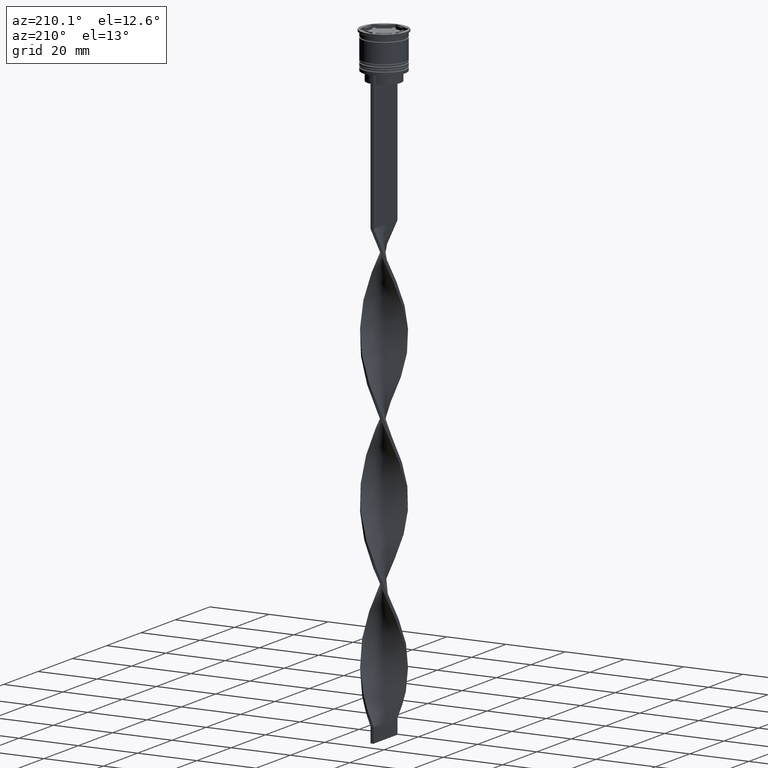
[diagram: clean part render]
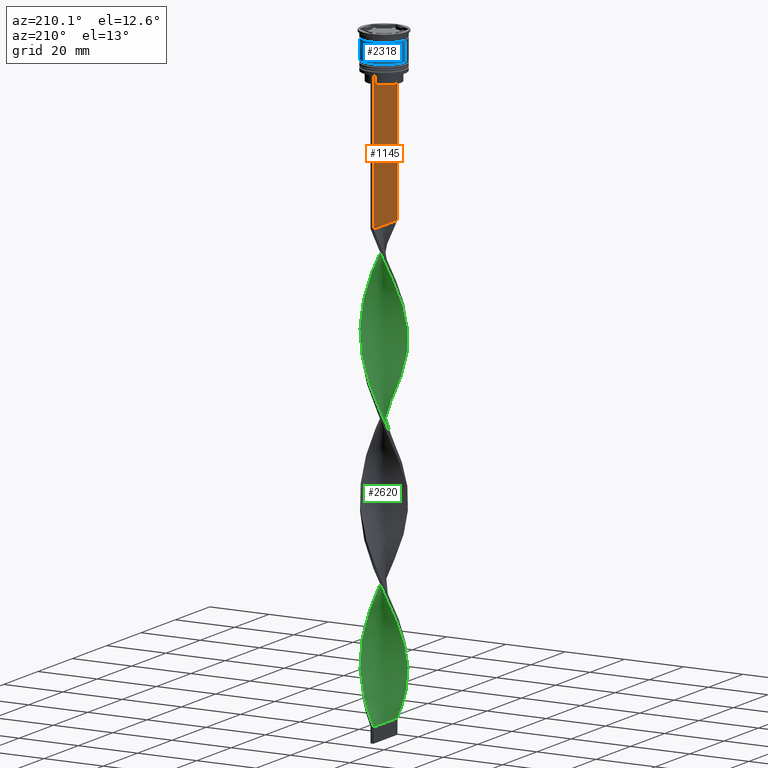
[diagram: same view with three faces highlighted in distinct colors, each labeled with its STEP entity id]
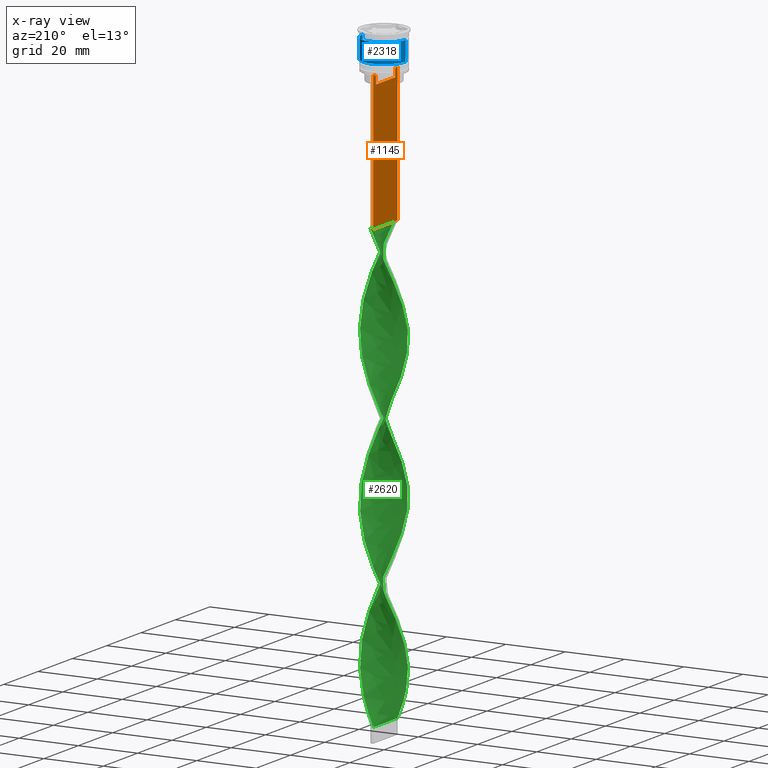
[diagram: x-ray of the same camera — body ghosted, the three highlighted faces saturated]
A machine part, auxiliary view with three faces highlighted in distinct colors.
The next image is the same camera in x-ray (body ghosted, the three faces saturated) — at least one of them is partly hidden behind the body in this view.
Their STEP definitions:

[orange] entity #1145 — the highlighted planar face has unit normal (-1, 0, 0).
#57 = CARTESIAN_POINT ( 'NONE',  ( -0.5000000000000000000, 5.962396146966409738, -12.66669130573587054 ) ) ;
#62 = LINE ( 'NONE', #2105, #868 ) ;
#79 = CARTESIAN_POINT ( 'NONE',  ( -0.5000000000000000000, 7.000000000000002665, -12.50000000000000000 ) ) ;
#200 = CARTESIAN_POINT ( 'NONE',  ( -0.5000000000000000000, -5.795128760752289665, -12.83336023406855197 ) ) ;
#242 = DIRECTION ( 'NONE',  ( 0.000000000000000000, 0.000000000000000000, -1.000000000000000000 ) ) ;
#333 = VERTEX_POINT ( 'NONE', #3724 ) ;
#367 = FACE_OUTER_BOUND ( 'NONE', #2247, .T. ) ;
#393 = VECTOR ( 'NONE', #1490, 1000.000000000000000 ) ;
#397 = LINE ( 'NONE', #1574, #1797 ) ;
#406 = CARTESIAN_POINT ( 'NONE',  ( -0.5000000000000000000, 7.000000000000002665, 1.535668847618198329 ) ) ;
#432 = EDGE_CURVE ( 'NONE', #895, #1703, #2341, .T. ) ;
#528 = VERTEX_POINT ( 'NONE', #910 ) ;
#578 = CARTESIAN_POINT ( 'NONE',  ( -0.5000000000000000000, 5.627832620112292794, -13.00000000000000000 ) ) ;
#642 = EDGE_CURVE ( 'NONE', #2030, #895, #1331, .T. ) ;
#652 = DIRECTION ( 'NONE',  ( -1.000000000000000000, 0.000000000000000000, 0.000000000000000000 ) ) ;
#665 = VERTEX_POINT ( 'NONE', #2224 ) ;
#676 = DIRECTION ( 'NONE',  ( 0.000000000000000000, 0.000000000000000000, -1.000000000000000000 ) ) ;
#693 = LINE ( 'NONE', #406, #2223 ) ;
#771 = CARTESIAN_POINT ( 'NONE',  ( -0.5000000000000000000, -6.999999999999997335, -12.50000000000000000 ) ) ;
#789 = CARTESIAN_POINT ( 'NONE',  ( -0.5000000000000000000, -5.962396079681185235, -12.66669137279835589 ) ) ;
#815 = ORIENTED_EDGE ( 'NONE', *, *, #1494, .F. ) ;
#831 = B_SPLINE_CURVE_WITH_KNOTS ( 'NONE', 3,
 ( #1064, #200, #789, #1972 ),
 .UNSPECIFIED., .F., .F.,
 ( 4, 4 ),
 ( 0.02651134470867368836, 0.02721991123504332449 ),
 .UNSPECIFIED. ) ;
#868 = VECTOR ( 'NONE', #2126, 1000.000000000000000 ) ;
#895 = VERTEX_POINT ( 'NONE', #1662 ) ;
#910 = CARTESIAN_POINT ( 'NONE',  ( -0.5000000000000000000, -5.627832620112292794, -13.00000000000000000 ) ) ;
#972 = EDGE_CURVE ( 'NONE', #333, #2030, #1520, .T. ) ;
#993 = CARTESIAN_POINT ( 'NONE',  ( -0.5000000000000000000, -6.999999999999997335, -12.50000000000000000 ) ) ;
#1064 = CARTESIAN_POINT ( 'NONE',  ( -0.5000000000000000000, -5.627832620112292794, -13.00000000000000000 ) ) ;
#1122 = CARTESIAN_POINT ( 'NONE',  ( -0.5000000000000000000, -5.627832620112292794, -15.50000000000000000 ) ) ;
#1145 = ADVANCED_FACE ( 'NONE', ( #367 ), #1546, .T. ) ;
#1176 = CARTESIAN_POINT ( 'NONE',  ( -0.5000000000000000000, 6.129641098791995368, -12.50000000000000000 ) ) ;
#1276 = DIRECTION ( 'NONE',  ( 0.000000000000000000, -1.000000000000000000, 0.000000000000000000 ) ) ;
#1277 = EDGE_CURVE ( 'NONE', #1441, #665, #62, .T. ) ;
#1292 = VECTOR ( 'NONE', #2218, 1000.000000000000000 ) ;
#1315 = ORIENTED_EDGE ( 'NONE', *, *, #3653, .F. ) ;
#1324 = ORIENTED_EDGE ( 'NONE', *, *, #1328, .T. ) ;
#1328 = EDGE_CURVE ( 'NONE', #2728, #665, #693, .T. ) ;
#1331 = LINE ( 'NONE', #2511, #2602 ) ;
#1383 = LINE ( 'NONE', #3729, #3449 ) ;
#1423 = VECTOR ( 'NONE', #3116, 1000.000000000000000 ) ;
#1441 = VERTEX_POINT ( 'NONE', #3658 ) ;
#1469 = EDGE_CURVE ( 'NONE', #528, #2077, #831, .T. ) ;
#1490 = DIRECTION ( 'NONE',  ( 0.000000000000000000, -1.000000000000000000, 0.000000000000000000 ) ) ;
#1494 = EDGE_CURVE ( 'NONE', #1703, #528, #2508, .T. ) ;
#1520 = B_SPLINE_CURVE_WITH_KNOTS ( 'NONE', 3,
 ( #1176, #57, #3192, #578 ),
 .UNSPECIFIED., .F., .F.,
 ( 4, 4 ),
 ( 0.01045365750109871796, 0.01116204421161398619 ),
 .UNSPECIFIED. ) ;
#1546 = PLANE ( 'NONE',  #2884 ) ;
#1574 = CARTESIAN_POINT ( 'NONE',  ( -0.5000000000000000000, -6.999999999999997335, -12.50000000000000000 ) ) ;
#1662 = CARTESIAN_POINT ( 'NONE',  ( -0.5000000000000000000, 5.627832620112292794, -15.50000000000000000 ) ) ;
#1703 = VERTEX_POINT ( 'NONE', #1122 ) ;
#1708 = ORIENTED_EDGE ( 'NONE', *, *, #432, .F. ) ;
#1797 = VECTOR ( 'NONE', #1276, 1000.000000000000000 ) ;
#1967 = ORIENTED_EDGE ( 'NONE', *, *, #1469, .F. ) ;
#1972 = CARTESIAN_POINT ( 'NONE',  ( -0.5000000000000000000, -6.129641098791995368, -12.50000000000000000 ) ) ;
#2020 = CARTESIAN_POINT ( 'NONE',  ( -0.5000000000000000000, -6.129641098791995368, -12.50000000000000000 ) ) ;
#2030 = VERTEX_POINT ( 'NONE', #2504 ) ;
#2073 = ORIENTED_EDGE ( 'NONE', *, *, #3774, .F. ) ;
#2077 = VERTEX_POINT ( 'NONE', #2020 ) ;
#2105 = CARTESIAN_POINT ( 'NONE',  ( -0.5000000000000000000, -6.999999999999997335, -58.50000000000000000 ) ) ;
#2126 = DIRECTION ( 'NONE',  ( 0.000000000000000000, 1.000000000000000000, 0.000000000000000000 ) ) ;
#2157 = ORIENTED_EDGE ( 'NONE', *, *, #642, .F. ) ;
#2182 = LINE ( 'NONE', #771, #1423 ) ;
#2218 = DIRECTION ( 'NONE',  ( -0.000000000000000000, -0.000000000000000000, 1.000000000000000000 ) ) ;
#2223 = VECTOR ( 'NONE', #2563, 1000.000000000000000 ) ;
#2224 = CARTESIAN_POINT ( 'NONE',  ( -0.5000000000000000000, 7.000000000000002665, -58.50000000000000000 ) ) ;
#2247 = EDGE_LOOP ( 'NONE', ( #2302, #1315, #1324, #2574, #2566, #2073, #1967, #815, #1708, #2157 ) ) ;
#2302 = ORIENTED_EDGE ( 'NONE', *, *, #972, .F. ) ;
#2341 = LINE ( 'NONE', #3279, #393 ) ;
#2431 = CARTESIAN_POINT ( 'NONE',  ( -0.5000000000000000000, -6.999999999999997335, 1.535668847618198329 ) ) ;
#2504 = CARTESIAN_POINT ( 'NONE',  ( -0.5000000000000000000, 5.627832620112292794, -13.00000000000000000 ) ) ;
#2508 = LINE ( 'NONE', #3675, #1292 ) ;
#2511 = CARTESIAN_POINT ( 'NONE',  ( -0.5000000000000000000, 5.627832620112292794, 0.000000000000000000 ) ) ;
#2563 = DIRECTION ( 'NONE',  ( 0.000000000000000000, 0.000000000000000000, -1.000000000000000000 ) ) ;
#2566 = ORIENTED_EDGE ( 'NONE', *, *, #3163, .F. ) ;
#2574 = ORIENTED_EDGE ( 'NONE', *, *, #1277, .F. ) ;
#2602 = VECTOR ( 'NONE', #676, 1000.000000000000000 ) ;
#2728 = VERTEX_POINT ( 'NONE', #79 ) ;
#2884 = AXIS2_PLACEMENT_3D ( 'NONE', #2431, #652, #3641 ) ;
#3116 = DIRECTION ( 'NONE',  ( 0.000000000000000000, -1.000000000000000000, 0.000000000000000000 ) ) ;
#3163 = EDGE_CURVE ( 'NONE', #3532, #1441, #1383, .T. ) ;
#3192 = CARTESIAN_POINT ( 'NONE',  ( -0.5000000000000000000, 5.795128834036803234, -12.83336016107156574 ) ) ;
#3279 = CARTESIAN_POINT ( 'NONE',  ( -0.5000000000000000000, 5.649999999999998579, -15.50000000000000000 ) ) ;
#3449 = VECTOR ( 'NONE', #242, 1000.000000000000000 ) ;
#3532 = VERTEX_POINT ( 'NONE', #993 ) ;
#3641 = DIRECTION ( 'NONE',  ( 0.000000000000000000, 0.000000000000000000, 1.000000000000000000 ) ) ;
#3653 = EDGE_CURVE ( 'NONE', #2728, #333, #397, .T. ) ;
#3658 = CARTESIAN_POINT ( 'NONE',  ( -0.5000000000000000000, -6.999999999999997335, -58.50000000000000000 ) ) ;
#3675 = CARTESIAN_POINT ( 'NONE',  ( -0.5000000000000000000, -5.627832620112292794, 0.000000000000000000 ) ) ;
#3724 = CARTESIAN_POINT ( 'NONE',  ( -0.5000000000000000000, 6.129641098791995368, -12.50000000000000000 ) ) ;
#3729 = CARTESIAN_POINT ( 'NONE',  ( -0.5000000000000000000, -6.999999999999997335, 1.535668847618198329 ) ) ;
#3774 = EDGE_CURVE ( 'NONE', #2077, #3532, #2182, .T. ) ;

[blue] entity #2318 — the highlighted cylindrical surface (edge-blend (fillet) strip) has radius 7.25 mm, axis along (-0, -0, 1).
#458 = EDGE_CURVE ( 'NONE', #2914, #3523, #1782, .T. ) ;
#463 = DIRECTION ( 'NONE',  ( 1.000000000000000000, 0.000000000000000000, 0.000000000000000000 ) ) ;
#574 = EDGE_CURVE ( 'NONE', #2513, #2778, #3374, .T. ) ;
#581 = DIRECTION ( 'NONE',  ( 1.000000000000000000, 0.000000000000000000, 0.000000000000000000 ) ) ;
#829 = EDGE_CURVE ( 'NONE', #2513, #2914, #2040, .T. ) ;
#863 = ORIENTED_EDGE ( 'NONE', *, *, #829, .T. ) ;
#874 = CARTESIAN_POINT ( 'NONE',  ( 0.000000000000000000, 0.000000000000000000, -9.000000000000001776 ) ) ;
#877 = CARTESIAN_POINT ( 'NONE',  ( -7.249999999999999112, 8.878689293818310074E-16, 0.000000000000000000 ) ) ;
#1008 = DIRECTION ( 'NONE',  ( -0.000000000000000000, -0.000000000000000000, 1.000000000000000000 ) ) ;
#1011 = CARTESIAN_POINT ( 'NONE',  ( -7.249999999999997335, 8.878689293818308102E-16, -2.500000000000000444 ) ) ;
#1110 = AXIS2_PLACEMENT_3D ( 'NONE', #874, #2053, #581 ) ;
#1177 = CIRCLE ( 'NONE', #3390, 7.249999999999997335 ) ;
#1280 = ORIENTED_EDGE ( 'NONE', *, *, #458, .T. ) ;
#1394 = EDGE_CURVE ( 'NONE', #2778, #3523, #1177, .T. ) ;
#1507 = DIRECTION ( 'NONE',  ( -0.000000000000000000, -0.000000000000000000, 1.000000000000000000 ) ) ;
#1558 = CARTESIAN_POINT ( 'NONE',  ( -7.250000000000000888, 8.878689293818312046E-16, -9.000000000000001776 ) ) ;
#1782 = LINE ( 'NONE', #877, #2242 ) ;
#1922 = AXIS2_PLACEMENT_3D ( 'NONE', #3589, #2365, #3001 ) ;
#2040 = CIRCLE ( 'NONE', #1110, 7.250000000000000888 ) ;
#2053 = DIRECTION ( 'NONE',  ( -0.000000000000000000, -0.000000000000000000, 1.000000000000000000 ) ) ;
#2242 = VECTOR ( 'NONE', #1507, 1000.000000000000000 ) ;
#2278 = DIRECTION ( 'NONE',  ( -0.000000000000000000, -0.000000000000000000, 1.000000000000000000 ) ) ;
#2318 = ADVANCED_FACE ( 'NONE', ( #3570 ), #3552, .T. ) ;
#2365 = DIRECTION ( 'NONE',  ( -0.000000000000000000, -0.000000000000000000, 1.000000000000000000 ) ) ;
#2458 = ORIENTED_EDGE ( 'NONE', *, *, #1394, .F. ) ;
#2513 = VERTEX_POINT ( 'NONE', #3646 ) ;
#2739 = CARTESIAN_POINT ( 'NONE',  ( 7.249999999999999112, 0.000000000000000000, 0.000000000000000000 ) ) ;
#2778 = VERTEX_POINT ( 'NONE', #3215 ) ;
#2914 = VERTEX_POINT ( 'NONE', #1558 ) ;
#3001 = DIRECTION ( 'NONE',  ( 1.000000000000000000, 0.000000000000000000, 0.000000000000000000 ) ) ;
#3071 = EDGE_LOOP ( 'NONE', ( #863, #1280, #2458, #3285 ) ) ;
#3215 = CARTESIAN_POINT ( 'NONE',  ( 7.249999999999997335, 0.000000000000000000, -2.500000000000000444 ) ) ;
#3285 = ORIENTED_EDGE ( 'NONE', *, *, #574, .F. ) ;
#3374 = LINE ( 'NONE', #2739, #3712 ) ;
#3390 = AXIS2_PLACEMENT_3D ( 'NONE', #3698, #2278, #463 ) ;
#3523 = VERTEX_POINT ( 'NONE', #1011 ) ;
#3552 = CYLINDRICAL_SURFACE ( 'NONE', #1922, 7.249999999999999112 ) ;
#3570 = FACE_OUTER_BOUND ( 'NONE', #3071, .T. ) ;
#3589 = CARTESIAN_POINT ( 'NONE',  ( 0.000000000000000000, 0.000000000000000000, 0.000000000000000000 ) ) ;
#3646 = CARTESIAN_POINT ( 'NONE',  ( 7.250000000000000888, 0.000000000000000000, -9.000000000000001776 ) ) ;
#3698 = CARTESIAN_POINT ( 'NONE',  ( 0.000000000000000000, 0.000000000000000000, -2.500000000000000444 ) ) ;
#3712 = VECTOR ( 'NONE', #1008, 1000.000000000000000 ) ;

[green] entity #2620 — the highlighted face is a freeform B-spline surface patch.
#5 = CARTESIAN_POINT ( 'NONE',  ( -5.284803272772050420, 4.617451068294916361, -73.10784313725488914 ) ) ;
#10 = CARTESIAN_POINT ( 'NONE',  ( 1.777733174557941886, 6.788936938879031047, -154.9117647058823479 ) ) ;
#42 = CARTESIAN_POINT ( 'NONE',  ( -4.110133708006299180, -5.688303868668623586, -198.7352941176470722 ) ) ;
#63 = CARTESIAN_POINT ( 'NONE',  ( 5.085373964136229219, -4.836214598721332969, -169.5196078431372371 ) ) ;
#82 = CARTESIAN_POINT ( 'NONE',  ( -6.373874598089927623, 3.007758344858555866, -176.8235294117647243 ) ) ;
#101 = CARTESIAN_POINT ( 'NONE',  ( -3.583034730602821405, -6.069163844594760882, -200.1960784313725696 ) ) ;
#112 = CARTESIAN_POINT ( 'NONE',  ( 2.062455548607891487, 6.707926438924064705, -102.3235294117646959 ) ) ;
#123 = CARTESIAN_POINT ( 'NONE',  ( 1.777733174557942775, -6.788936938879025718, -61.42156862745097357 ) ) ;
#129 = EDGE_CURVE ( 'NONE', #2551, #1695, #3272, .T. ) ;
#131 = CARTESIAN_POINT ( 'NONE',  ( -6.489012217373707259, -2.672586844758237490, -189.9705882352941160 ) ) ;
#150 = CARTESIAN_POINT ( 'NONE',  ( 3.259916572276681634, 6.214736031545974981, -99.40196078431372939 ) ) ;
#165 = CARTESIAN_POINT ( 'NONE',  ( 6.043273861597170615, -3.567750136113298609, -125.6960784313725412 ) ) ;
#167 = CARTESIAN_POINT ( 'NONE',  ( 6.818021416257458611, 1.785349159323425638, -86.25490196078432348 ) ) ;
#180 = CARTESIAN_POINT ( 'NONE',  ( 7.002558135184063559, -0.7981649056490300875, -80.41176470588234793 ) ) ;
#184 = CARTESIAN_POINT ( 'NONE',  ( -3.259916572276684299, 6.214736031545979422, -67.26470588235292780 ) ) ;
#186 = CARTESIAN_POINT ( 'NONE',  ( 0.5000000000000000000, -6.999999999999997335, -58.50000000000000000 ) ) ;
#198 = CARTESIAN_POINT ( 'NONE',  ( -5.887437909151302051, 3.819433841014674424, -122.7745098039215605 ) ) ;
#202 = CARTESIAN_POINT ( 'NONE',  ( 6.489012217373702818, -2.672586844758235713, -76.02941176470586981 ) ) ;
#205 = CARTESIAN_POINT ( 'NONE',  ( 6.489012217373707259, 2.672586844758239710, -140.3039215686274588 ) ) ;
#216 = CARTESIAN_POINT ( 'NONE',  ( -6.595948007173689120, -2.396553752090988088, -137.3823529411764639 ) ) ;
#219 = CARTESIAN_POINT ( 'NONE',  ( 2.994927778012247632, -6.346684772736912450, -163.6764705882352757 ) ) ;
#221 = CARTESIAN_POINT ( 'NONE',  ( 3.835796673391457468, -5.912660275514004304, -118.3921568627451109 ) ) ;
#231 = CARTESIAN_POINT ( 'NONE',  ( 2.406820825421677412, -6.624205700879066683, -162.2156862745098351 ) ) ;
#234 = CARTESIAN_POINT ( 'NONE',  ( 6.595948007173689120, 2.396553752090988976, -87.71568627450979250 ) ) ;
#236 = CARTESIAN_POINT ( 'NONE',  ( 3.259916572276685187, -6.214736031545978534, -116.9313725490195992 ) ) ;
#247 = CARTESIAN_POINT ( 'NONE',  ( -3.583034730602816964, 6.069163844594756441, -115.4705882352940876 ) ) ;
#254 = CARTESIAN_POINT ( 'NONE',  ( 5.085373964136231884, 4.836214598721338298, -146.1470588235294201 ) ) ;
#257 = CARTESIAN_POINT ( 'NONE',  ( -7.016273413796890956, 0.1480114280955958372, -131.5392156862745310 ) ) ;
#259 = CARTESIAN_POINT ( 'NONE',  ( 5.533515242862684147, 4.364985304700190305, -144.6862745098039227 ) ) ;
#260 = CARTESIAN_POINT ( 'NONE',  ( -0.4999999999999991673, 6.999999999999997335, -207.5000000000000000 ) ) ;
#270 = CARTESIAN_POINT ( 'NONE',  ( -2.684036471161909354, -6.516811787577954540, -150.5294117647058840 ) ) ;
#274 = CARTESIAN_POINT ( 'NONE',  ( -5.887437909151307380, -3.819433841014676201, -93.55882352941176805 ) ) ;
#275 = CARTESIAN_POINT ( 'NONE',  ( 6.869610997245771955, -1.434728108918169154, -178.2843137254901933 ) ) ;
#277 = CARTESIAN_POINT ( 'NONE',  ( -6.043273861597169727, 3.567750136113300385, -76.02941176470586981 ) ) ;
#291 = CARTESIAN_POINT ( 'NONE',  ( -5.085373964136233660, -4.836214598721335634, -96.48039215686274872 ) ) ;
#295 = CARTESIAN_POINT ( 'NONE',  ( -0.1486455236942086366, 7.046331823121017912, -159.2941176470588118 ) ) ;
#331 = CARTESIAN_POINT ( 'NONE',  ( -3.835796673391458800, 5.912660275514003416, -168.0588235294117680 ) ) ;
#332 = CARTESIAN_POINT ( 'NONE',  ( 6.736663859307483904, -2.071291312187310663, -176.8235294117647243 ) ) ;
#347 = CARTESIAN_POINT ( 'NONE',  ( -6.736663859307489233, -2.071291312187311551, -188.5098039215686185 ) ) ;
#350 = CARTESIAN_POINT ( 'NONE',  ( 7.016273413796890068, -0.1480114280955966977, -181.2058823529411598 ) ) ;
#387 = CARTESIAN_POINT ( 'NONE',  ( 1.148645523694208581, 6.953668176878989193, -156.3725490196078454 ) ) ;
#399 = CARTESIAN_POINT ( 'NONE',  ( -6.241360575439927061, -3.273882377329165649, -191.4313725490196134 ) ) ;
#416 = CARTESIAN_POINT ( 'NONE',  ( 4.637232685409776067, -5.307443892742482738, -68.72549019607842524 ) ) ;
#426 = CARTESIAN_POINT ( 'NONE',  ( 4.110133708006296516, -5.688303868668619145, -67.26470588235292780 ) ) ;
#434 = CARTESIAN_POINT ( 'NONE',  ( 6.373874598089922294, 3.007758344858553201, -89.17647058823527573 ) ) ;
#453 = CARTESIAN_POINT ( 'NONE',  ( 5.284803272772050420, -4.617451068294917249, -122.7745098039215605 ) ) ;
#455 = CARTESIAN_POINT ( 'NONE',  ( 4.110133708006296516, -5.688303868668619145, -67.26470588235292780 ) ) ;
#468 = CARTESIAN_POINT ( 'NONE',  ( 7.002558135184068888, 0.7981649056490325300, -135.9215686274509665 ) ) ;
#470 = CARTESIAN_POINT ( 'NONE',  ( 6.869610997245771955, -1.434728108918169154, -78.95098039215686470 ) ) ;
#478 = CARTESIAN_POINT ( 'NONE',  ( -0.7947600748740389909, -6.972686456695594615, -154.9117647058823479 ) ) ;
#482 = CARTESIAN_POINT ( 'NONE',  ( -4.346365046915567909, -5.509910242367891620, -146.1470588235294201 ) ) ;
#485 = CARTESIAN_POINT ( 'NONE',  ( -3.835796673391458800, 5.912660275514003416, -68.72549019607842524 ) ) ;
#499 = CARTESIAN_POINT ( 'NONE',  ( -5.533515242862683259, 4.364985304700184088, -121.3137254901960631 ) ) ;
#503 = CARTESIAN_POINT ( 'NONE',  ( 6.818021416257458611, 1.785349159323425638, -86.25490196078432348 ) ) ;
#505 = CARTESIAN_POINT ( 'NONE',  ( -1.440874626053875396, 6.899041090270183751, -62.88235294117647811 ) ) ;
#515 = CARTESIAN_POINT ( 'NONE',  ( -6.736663859307483904, 2.071291312187310663, -127.1568627450980102 ) ) ;
#518 = CARTESIAN_POINT ( 'NONE',  ( 4.110133708006296516, -5.688303868668619145, -166.5980392156862706 ) ) ;
#521 = CARTESIAN_POINT ( 'NONE',  ( 6.818021416257465717, -1.785349159323423862, -130.0784313725490335 ) ) ;
#531 = CARTESIAN_POINT ( 'NONE',  ( 0.5000000000000000000, -6.999999999999997335, -157.8333333333333144 ) ) ;
#536 = CARTESIAN_POINT ( 'NONE',  ( 5.533515242862685035, 4.364985304700190305, -144.6862745098039227 ) ) ;
#537 = CARTESIAN_POINT ( 'NONE',  ( 4.346365046915569685, 5.509910242367890731, -96.48039215686274872 ) ) ;
#539 = CARTESIAN_POINT ( 'NONE',  ( -3.583034730602820961, -6.069163844594760882, -100.8627450980392126 ) ) ;
#551 = CARTESIAN_POINT ( 'NONE',  ( -4.110133708006297404, 5.688303868668618257, -116.9313725490195992 ) ) ;
#559 = CARTESIAN_POINT ( 'NONE',  ( -0.1486455236942086366, 7.046331823121017912, -59.96078431372549034 ) ) ;
#561 = CARTESIAN_POINT ( 'NONE',  ( 6.924005054333588483, 1.143745604390630222, -84.79411764705882604 ) ) ;
#563 = CARTESIAN_POINT ( 'NONE',  ( -4.110133708006299180, -5.688303868668623586, -99.40196078431372939 ) ) ;
#580 = CARTESIAN_POINT ( 'NONE',  ( -2.994927778012249409, -6.346684772736916891, -102.3235294117646959 ) ) ;
#583 = CARTESIAN_POINT ( 'NONE',  ( -0.7947600748740419885, 6.972686456695599944, -160.7549019607842808 ) ) ;
#592 = CARTESIAN_POINT ( 'NONE',  ( -0.4999999999999991673, 6.999999999999997335, -207.5000000000000000 ) ) ;
#595 =( BOUNDED_SURFACE ( )  B_SPLINE_SURFACE ( 1, 2, ( 
 ( #3178, #795, #3145, #505, #2567, #3491, #1745, #485, #1162, #1088, #2606, #2910, #277, #3199, #2854, #2552, #1722, #3433, #2869, #1409, #2266, #1668, #3761, #852, #3455, #3739, #2031, #1104, #563, #539, #1997, #1433, #2303, #3723, #2624, #2284, #1452, #2837, #1689, #2887, #236, #221, #2585, #1126, #3473, #1393, #834, #2055, #3162, #521, #3799, #3781, #2338, #1704, #3511, #876, #205, #2014, #1377, #259, #893, #2641, #2361, #2928, #3533, #1181, #10, #1765, #3222, #295, #583, #1468, #2173, #2801, #2457, #1593, #3361, #702, #3684, #2761, #763, #2234, #3667, #3087, #3064, #2479, #1319, #1943, #1926, #2252, #131, #399, #1885, #1013, #1075, #2193, #1904, #779, #2744, #1300, #2499, #2817, #3046 ),
 ( #186, #1576, #3404, #1279, #3030, #722, #455, #416, #741, #3105, #1033, #3649, #1652, #2211, #470, #3708, #3344, #1634, #3381, #167, #1053, #434, #1337, #2517, #1357, #1615, #3419, #2537, #150, #2782, #112, #3630, #995, #1099, #2598, #3190, #1953, #2616, #2544, #247, #551, #1739, #846, #499, #198, #3172, #1082, #515, #2864, #3717, #3114, #1404, #3772, #2276, #216, #1137, #1387, #2314, #2006, #3443, #2879, #3749, #1368, #270, #2562, #3484, #478, #1970, #531, #1698, #3428, #231, #2578, #1119, #788, #2295, #3502, #2260, #3131, #2902, #1425, #2025, #1681, #1444, #3791, #2332, #1990, #1155, #808, #1716, #3465, #1659, #2824, #2847, #3734, #3154, #826, #3288, #902, #647, #1479, #2372, #592 ) ),
 .UNSPECIFIED., .F., .F., .F. ) 
 B_SPLINE_SURFACE_WITH_KNOTS ( ( 2, 2 ),
 ( 3, 2, 2, 2, 2, 2, 2, 2, 2, 2, 2, 2, 2, 2, 2, 2, 2, 2, 2, 2, 2, 2, 2, 2, 2, 2, 2, 2, 2, 2, 2, 2, 2, 2, 2, 2, 2, 2, 2, 2, 2, 2, 2, 2, 2, 2, 2, 2, 2, 2, 2, 3 ),
 ( 0.000000000000000000, 1.000000000000000000 ),
 ( 0.000000000000000000, 0.01470588235294117627, 0.02941176470588235253, 0.04411764705882353227, 0.05882352941176470507, 0.07352941176470588480, 0.08823529411764706454, 0.1029411764705882304, 0.1176470588235294101, 0.1323529411764705899, 0.1470588235294117696, 0.1617647058823529493, 0.1764705882352941291, 0.1911764705882352811, 0.2058823529411764608, 0.2205882352941176405, 0.2352941176470588203, 0.2500000000000000000, 0.2647058823529411797, 0.2794117647058823595, 0.2941176470588235392, 0.3088235294117647189, 0.3235294117647058987, 0.3382352941176470784, 0.3529411764705882582, 0.3676470588235294379, 0.3823529411764705621, 0.3970588235294117418, 0.4117647058823529216, 0.4264705882352941013, 0.4411764705882352811, 0.4558823529411764608, 0.4705882352941176405, 0.4852941176470588203, 0.5000000000000000000, 0.5147058823529411242, 0.5294117647058823595, 0.5441176470588234837, 0.5588235294117647189, 0.5735294117647058432, 0.5882352941176470784, 0.6029411764705882026, 0.6176470588235294379, 0.6323529411764705621, 0.6470588235294117974, 0.6617647058823529216, 0.6764705882352941568, 0.6911764705882352811, 0.7058823529411765163, 0.7205882352941176405, 0.7352941176470588758, 0.7500000000000000000 ),
 .UNSPECIFIED. ) 
 GEOMETRIC_REPRESENTATION_ITEM ( )  RATIONAL_B_SPLINE_SURFACE ( (
 ( 1.000000000000000000, 0.9957341762950344677, 1.000000000000000000, 0.9957341762950344677, 1.000000000000000000, 0.9957341762950344677, 1.000000000000000000, 0.9957341762950344677, 1.000000000000000000, 0.9957341762950344677, 1.000000000000000000, 0.9957341762950344677, 1.000000000000000000, 0.9957341762950344677, 1.000000000000000000, 0.9957341762950344677, 1.000000000000000000, 0.9957341762950344677, 1.000000000000000000, 0.9957341762950344677, 1.000000000000000000, 0.9957341762950344677, 1.000000000000000000, 0.9957341762950344677, 1.000000000000000000, 0.9957341762950344677, 1.000000000000000000, 0.9957341762950344677, 1.000000000000000000, 0.9957341762950344677, 1.000000000000000000, 0.9957341762950344677, 1.000000000000000000, 0.9957341762950344677, 1.000000000000000000, 0.9957341762950344677, 1.000000000000000000, 0.9957341762950344677, 1.000000000000000000, 0.9957341762950344677, 1.000000000000000000, 0.9957341762950344677, 1.000000000000000000, 0.9957341762950344677, 1.000000000000000000, 0.9957341762950344677, 1.000000000000000000, 0.9957341762950344677, 1.000000000000000000, 0.9957341762950344677, 1.000000000000000000, 0.9957341762950344677, 1.000000000000000000, 0.9957341762950344677, 1.000000000000000000, 0.9957341762950344677, 1.000000000000000000, 0.9957341762950344677, 1.000000000000000000, 0.9957341762950344677, 1.000000000000000000, 0.9957341762950344677, 1.000000000000000000, 0.9957341762950344677, 1.000000000000000000, 0.9957341762950344677, 1.000000000000000000, 0.9957341762950344677, 1.000000000000000000, 0.9957341762950344677, 1.000000000000000000, 0.9957341762950344677, 1.000000000000000000, 0.9957341762950344677, 1.000000000000000000, 0.9957341762950344677, 1.000000000000000000, 0.9957341762950344677, 1.000000000000000000, 0.9957341762950344677, 1.000000000000000000, 0.9957341762950344677, 1.000000000000000000, 0.9957341762950344677, 1.000000000000000000, 0.9957341762950344677, 1.000000000000000000, 0.9957341762950344677, 1.000000000000000000, 0.9957341762950344677, 1.000000000000000000, 0.9957341762950344677, 1.000000000000000000, 0.9957341762950344677, 1.000000000000000000, 0.9957341762950344677, 1.000000000000000000, 0.9957341762950344677, 1.000000000000000000, 0.9957341762950344677, 1.000000000000000000, 0.9957341762950344677, 1.000000000000000000),
 ( 1.000000000000000000, 0.9957341762950344677, 1.000000000000000000, 0.9957341762950344677, 1.000000000000000000, 0.9957341762950344677, 1.000000000000000000, 0.9957341762950344677, 1.000000000000000000, 0.9957341762950344677, 1.000000000000000000, 0.9957341762950344677, 1.000000000000000000, 0.9957341762950344677, 1.000000000000000000, 0.9957341762950344677, 1.000000000000000000, 0.9957341762950344677, 1.000000000000000000, 0.9957341762950344677, 1.000000000000000000, 0.9957341762950344677, 1.000000000000000000, 0.9957341762950344677, 1.000000000000000000, 0.9957341762950344677, 1.000000000000000000, 0.9957341762950344677, 1.000000000000000000, 0.9957341762950344677, 1.000000000000000000, 0.9957341762950344677, 1.000000000000000000, 0.9957341762950344677, 1.000000000000000000, 0.9957341762950344677, 1.000000000000000000, 0.9957341762950344677, 1.000000000000000000, 0.9957341762950344677, 1.000000000000000000, 0.9957341762950344677, 1.000000000000000000, 0.9957341762950344677, 1.000000000000000000, 0.9957341762950344677, 1.000000000000000000, 0.9957341762950344677, 1.000000000000000000, 0.9957341762950344677, 1.000000000000000000, 0.9957341762950344677, 1.000000000000000000, 0.9957341762950344677, 1.000000000000000000, 0.9957341762950344677, 1.000000000000000000, 0.9957341762950344677, 1.000000000000000000, 0.9957341762950344677, 1.000000000000000000, 0.9957341762950344677, 1.000000000000000000, 0.9957341762950344677, 1.000000000000000000, 0.9957341762950344677, 1.000000000000000000, 0.9957341762950344677, 1.000000000000000000, 0.9957341762950344677, 1.000000000000000000, 0.9957341762950344677, 1.000000000000000000, 0.9957341762950344677, 1.000000000000000000, 0.9957341762950344677, 1.000000000000000000, 0.9957341762950344677, 1.000000000000000000, 0.9957341762950344677, 1.000000000000000000, 0.9957341762950344677, 1.000000000000000000, 0.9957341762950344677, 1.000000000000000000, 0.9957341762950344677, 1.000000000000000000, 0.9957341762950344677, 1.000000000000000000, 0.9957341762950344677, 1.000000000000000000, 0.9957341762950344677, 1.000000000000000000, 0.9957341762950344677, 1.000000000000000000, 0.9957341762950344677, 1.000000000000000000, 0.9957341762950344677, 1.000000000000000000, 0.9957341762950344677, 1.000000000000000000, 0.9957341762950344677, 1.000000000000000000) ) ) 
 REPRESENTATION_ITEM ( '' )  SURFACE ( )  );
#596 = CARTESIAN_POINT ( 'NONE',  ( -1.777733174557944107, -6.788936938879031047, -204.5784313725490335 ) ) ;
#613 = CARTESIAN_POINT ( 'NONE',  ( -5.712673125104412719, 4.127741927368047570, -173.9019607843137294 ) ) ;
#635 = CARTESIAN_POINT ( 'NONE',  ( 6.043273861597165286, 3.567750136113297277, -189.9705882352941160 ) ) ;
#647 = CARTESIAN_POINT ( 'NONE',  ( 1.440874626053875396, 6.899041090270179311, -203.1176470588235361 ) ) ;
#668 = CARTESIAN_POINT ( 'NONE',  ( -6.489012217373707259, -2.672586844758237490, -189.9705882352941160 ) ) ;
#699 = CARTESIAN_POINT ( 'NONE',  ( -0.5000000000000008882, -7.000000000000002665, -207.5000000000000000 ) ) ;
#702 = CARTESIAN_POINT ( 'NONE',  ( -4.856933420439688120, 5.107160209221786928, -170.9803921568627629 ) ) ;
#719 =( BOUNDED_CURVE ( )  B_SPLINE_CURVE ( 2, ( #1880, #3041, #123, #1293, #3644, #3057, #426, #1606, #2493, #3661, #1027, #2205, #202, #3720, #3779, #180, #2011, #1067, #561, #503, #234, #1702, #2320, #2245, #3700, #1102, #537, #1431, #2811, #2604, #2301, #1350, #1665, #1142, #2834, #2530, #3471, #832, #3414, #2867, #3160, #3737, #1391, #3176, #1720, #774, #3488, #2565, #2282, #2885, #257, #1958, #850, #1085, #3759, #2029, #3197, #1372, #3119, #1124, #482, #3453, #2549, #2263, #814, #3431, #1976, #793, #3143, #1686, #2851, #1407, #219, #1994, #518, #2583, #63, #1179, #929, #1743, #1763, #332, #275, #1524, #350, #1779, #2697, #2359, #3236, #1466, #635, #3294, #2639, #3275, #1504, #1234, #1800, #3531, #1450, #908, #2127, #947, #2086 ),
 .UNSPECIFIED., .F., .T. ) 
 B_SPLINE_CURVE_WITH_KNOTS ( ( 3, 2, 2, 2, 2, 2, 2, 2, 2, 2, 2, 2, 2, 2, 2, 2, 2, 2, 2, 2, 2, 2, 2, 2, 2, 2, 2, 2, 2, 2, 2, 2, 2, 2, 2, 2, 2, 2, 2, 2, 2, 2, 2, 2, 2, 2, 2, 2, 2, 2, 2, 3 ),
 ( 0.000000000000000000, 0.01470588235294117453, 0.02941176470588234906, 0.04411764705882353227, 0.05882352941176469813, 0.07352941176470588480, 0.08823529411764706454, 0.1029411764705882443, 0.1176470588235293963, 0.1323529411764705899, 0.1470588235294117696, 0.1617647058823529493, 0.1764705882352941291, 0.1911764705882352811, 0.2058823529411764885, 0.2205882352941176405, 0.2352941176470587925, 0.2500000000000000000, 0.2647058823529411797, 0.2794117647058823595, 0.2941176470588235392, 0.3088235294117647189, 0.3235294117647058987, 0.3382352941176470229, 0.3529411764705882582, 0.3676470588235294379, 0.3823529411764705621, 0.3970588235294117418, 0.4117647058823529771, 0.4264705882352941013, 0.4411764705882352811, 0.4558823529411764608, 0.4705882352941175850, 0.4852941176470588203, 0.5000000000000000000, 0.5147058823529411242, 0.5294117647058823595, 0.5441176470588234837, 0.5588235294117647189, 0.5735294117647058432, 0.5882352941176470784, 0.6029411764705882026, 0.6176470588235294379, 0.6323529411764705621, 0.6470588235294117974, 0.6617647058823529216, 0.6764705882352940458, 0.6911764705882351700, 0.7058823529411765163, 0.7205882352941176405, 0.7352941176470588758, 0.7500000000000000000 ),
 .UNSPECIFIED. ) 
 CURVE ( )  GEOMETRIC_REPRESENTATION_ITEM ( )  RATIONAL_B_SPLINE_CURVE ( ( 1.000000000000000000, 0.9957341762950344677, 1.000000000000000000, 0.9957341762950344677, 1.000000000000000000, 0.9957341762950344677, 1.000000000000000000, 0.9957341762950344677, 1.000000000000000000, 0.9957341762950344677, 1.000000000000000000, 0.9957341762950344677, 1.000000000000000000, 0.9957341762950344677, 1.000000000000000000, 0.9957341762950344677, 1.000000000000000000, 0.9957341762950344677, 1.000000000000000000, 0.9957341762950344677, 1.000000000000000000, 0.9957341762950344677, 1.000000000000000000, 0.9957341762950344677, 1.000000000000000000, 0.9957341762950344677, 1.000000000000000000, 0.9957341762950344677, 1.000000000000000000, 0.9957341762950344677, 1.000000000000000000, 0.9957341762950344677, 1.000000000000000000, 0.9957341762950344677, 1.000000000000000000, 0.9957341762950344677, 1.000000000000000000, 0.9957341762950344677, 1.000000000000000000, 0.9957341762950344677, 1.000000000000000000, 0.9957341762950344677, 1.000000000000000000, 0.9957341762950344677, 1.000000000000000000, 0.9957341762950344677, 1.000000000000000000, 0.9957341762950344677, 1.000000000000000000, 0.9957341762950344677, 1.000000000000000000, 0.9957341762950344677, 1.000000000000000000, 0.9957341762950344677, 1.000000000000000000, 0.9957341762950344677, 1.000000000000000000, 0.9957341762950344677, 1.000000000000000000, 0.9957341762950344677, 1.000000000000000000, 0.9957341762950344677, 1.000000000000000000, 0.9957341762950344677, 1.000000000000000000, 0.9957341762950344677, 1.000000000000000000, 0.9957341762950344677, 1.000000000000000000, 0.9957341762950344677, 1.000000000000000000, 0.9957341762950344677, 1.000000000000000000, 0.9957341762950344677, 1.000000000000000000, 0.9957341762950344677, 1.000000000000000000, 0.9957341762950344677, 1.000000000000000000, 0.9957341762950344677, 1.000000000000000000, 0.9957341762950344677, 1.000000000000000000, 0.9957341762950344677, 1.000000000000000000, 0.9957341762950344677, 1.000000000000000000, 0.9957341762950344677, 1.000000000000000000, 0.9957341762950344677, 1.000000000000000000, 0.9957341762950344677, 1.000000000000000000, 0.9957341762950344677, 1.000000000000000000, 0.9957341762950344677, 1.000000000000000000, 0.9957341762950344677, 1.000000000000000000, 0.9957341762950344677, 1.000000000000000000, 0.9957341762950344677, 1.000000000000000000 ) ) 
 REPRESENTATION_ITEM ( '' )  );
#721 = CARTESIAN_POINT ( 'NONE',  ( -0.5000000000000003331, -2.333333333333336590, -207.5000000000000000 ) ) ;
#722 = CARTESIAN_POINT ( 'NONE',  ( 3.583034730602817852, -6.069163844594756441, -65.80392156862747299 ) ) ;
#741 = CARTESIAN_POINT ( 'NONE',  ( 5.085373964136229219, -4.836214598721332969, -70.18627450980390847 ) ) ;
#760 = CARTESIAN_POINT ( 'NONE',  ( 7.029988692409724571, -0.5021420494578385796, -133.0000000000000000 ) ) ;
#761 = EDGE_CURVE ( 'NONE', #1531, #1695, #719, .T. ) ;
#763 = CARTESIAN_POINT ( 'NONE',  ( -6.043273861597169727, 3.567750136113300385, -175.3627450980391984 ) ) ;
#774 = CARTESIAN_POINT ( 'NONE',  ( -6.241360575439922620, 3.273882377329164317, -124.2352941176470580 ) ) ;
#779 = CARTESIAN_POINT ( 'NONE',  ( -3.583034730602820961, -6.069163844594760882, -200.1960784313725981 ) ) ;
#783 = LINE ( 'NONE', #860, #2648 ) ;
#788 = CARTESIAN_POINT ( 'NONE',  ( 4.110133708006296516, -5.688303868668619145, -166.5980392156862706 ) ) ;
#793 = CARTESIAN_POINT ( 'NONE',  ( -0.1486455236942079983, -7.046331823121014359, -156.3725490196078454 ) ) ;
#795 = CARTESIAN_POINT ( 'NONE',  ( -0.1486455236942086366, 7.046331823121017912, -59.96078431372549744 ) ) ;
#808 = CARTESIAN_POINT ( 'NONE',  ( 6.595948007173689120, 2.396553752090988976, -187.0490196078431211 ) ) ;
#814 = CARTESIAN_POINT ( 'NONE',  ( -2.062455548607892375, -6.707926438924064705, -151.9901960784313530 ) ) ;
#826 = CARTESIAN_POINT ( 'NONE',  ( 3.259916572276681634, 6.214736031545974981, -198.7352941176470722 ) ) ;
#830 = CARTESIAN_POINT ( 'NONE',  ( 0.5000000000000000000, 7.000000000000002665, -58.50000000000000000 ) ) ;
#832 = CARTESIAN_POINT ( 'NONE',  ( -2.406820825421677412, 6.624205700879067571, -112.5490196078431495 ) ) ;
#834 = CARTESIAN_POINT ( 'NONE',  ( 6.043273861597170615, -3.567750136113298609, -125.6960784313725412 ) ) ;
#846 = CARTESIAN_POINT ( 'NONE',  ( -5.085373964136229219, 4.836214598721332969, -119.8529411764705799 ) ) ;
#849 = CARTESIAN_POINT ( 'NONE',  ( -1.440874626053875174, 6.899041090270183751, -62.88235294117647101 ) ) ;
#850 = CARTESIAN_POINT ( 'NONE',  ( -6.924005054333588483, -1.143745604390627779, -134.4607843137254974 ) ) ;
#851 = EDGE_LOOP ( 'NONE', ( #1594, #937, #2186, #2044 ) ) ;
#852 = CARTESIAN_POINT ( 'NONE',  ( -6.241360575439927061, -3.273882377329165649, -92.09803921568628482 ) ) ;
#860 = CARTESIAN_POINT ( 'NONE',  ( 0.5000000000000000000, -6.999999999999997335, -58.50000000000000000 ) ) ;
#872 = CARTESIAN_POINT ( 'NONE',  ( 3.835796673391457023, -5.912660275514004304, -118.3921568627451109 ) ) ;
#876 = CARTESIAN_POINT ( 'NONE',  ( 6.736663859307490121, 2.071291312187309774, -138.8431372549019045 ) ) ;
#890 = CARTESIAN_POINT ( 'NONE',  ( 4.856933420439689009, -5.107160209221786040, -121.3137254901960773 ) ) ;
#893 = CARTESIAN_POINT ( 'NONE',  ( 5.085373964136231884, 4.836214598721338298, -146.1470588235294201 ) ) ;
#902 = CARTESIAN_POINT ( 'NONE',  ( 2.062455548607891487, 6.707926438924064705, -201.6568627450980387 ) ) ;
#907 = CARTESIAN_POINT ( 'NONE',  ( -6.043273861597169727, 3.567750136113300385, -175.3627450980391984 ) ) ;
#908 = CARTESIAN_POINT ( 'NONE',  ( 1.440874626053875174, 6.899041090270179311, -203.1176470588235361 ) ) ;
#923 = CARTESIAN_POINT ( 'NONE',  ( -2.406820825421680521, -6.624205700879072012, -203.1176470588235361 ) ) ;
#929 = CARTESIAN_POINT ( 'NONE',  ( 5.887437909151302939, -3.819433841014673536, -172.4411764705882035 ) ) ;
#937 = ORIENTED_EDGE ( 'NONE', *, *, #761, .T. ) ;
#944 = CARTESIAN_POINT ( 'NONE',  ( -6.241360575439927949, -3.273882377329165649, -191.4313725490196134 ) ) ;
#947 = CARTESIAN_POINT ( 'NONE',  ( 0.1486455236942071378, 7.046331823121014359, -206.0392156862745026 ) ) ;
#962 = CARTESIAN_POINT ( 'NONE',  ( 2.994927778012250297, 6.346684772736916891, -151.9901960784313530 ) ) ;
#995 = CARTESIAN_POINT ( 'NONE',  ( 0.7947600748740411003, 6.972686456695594615, -105.2450980392156765 ) ) ;
#1013 = CARTESIAN_POINT ( 'NONE',  ( -5.533515242862685035, -4.364985304700188529, -194.3529411764705799 ) ) ;
#1014 =( BOUNDED_CURVE ( )  B_SPLINE_CURVE ( 2, ( #830, #559, #3103, #849, #3219, #2603, #184, #1762, #2319, #2052, #5, #3401, #1742, #1140, #2028, #3796, #2010, #3194, #2906, #1158, #1719, #3487, #2799, #2815, #274, #1448, #291, #2358, #2249, #2335, #580, #3084, #1178, #3682, #2619, #2924, #2638, #3530, #1650, #1335, #3506, #872, #1355, #890, #453, #1632, #165, #2515, #2882, #1051, #2232, #760, #1941, #468, #2535, #3706, #3175, #1072, #3469, #536, #254, #1430, #3777, #1541, #962, #3249, #1855, #387, #2447, #2103, #2141, #1269, #3618, #2411, #3310, #331, #1563, #2717, #3581, #613, #907, #82, #1799, #3599, #1250, #2694, #2124, #3271, #1503, #347, #668, #944, #2069, #2959, #3235, #2084, #42, #101, #1211, #923, #596, #3017, #3291 ),
 .UNSPECIFIED., .F., .T. ) 
 B_SPLINE_CURVE_WITH_KNOTS ( ( 3, 2, 2, 2, 2, 2, 2, 2, 2, 2, 2, 2, 2, 2, 2, 2, 2, 2, 2, 2, 2, 2, 2, 2, 2, 2, 2, 2, 2, 2, 2, 2, 2, 2, 2, 2, 2, 2, 2, 2, 2, 2, 2, 2, 2, 2, 2, 2, 2, 2, 2, 3 ),
 ( 0.000000000000000000, 0.01470588235294117453, 0.02941176470588234906, 0.04411764705882353227, 0.05882352941176469813, 0.07352941176470588480, 0.08823529411764706454, 0.1029411764705882443, 0.1176470588235293963, 0.1323529411764705899, 0.1470588235294117696, 0.1617647058823529493, 0.1764705882352941291, 0.1911764705882352811, 0.2058823529411764885, 0.2205882352941176405, 0.2352941176470587925, 0.2500000000000000000, 0.2647058823529411797, 0.2794117647058823595, 0.2941176470588235392, 0.3088235294117647189, 0.3235294117647058987, 0.3382352941176470229, 0.3529411764705882582, 0.3676470588235294379, 0.3823529411764705621, 0.3970588235294117418, 0.4117647058823529771, 0.4264705882352941013, 0.4411764705882352811, 0.4558823529411764608, 0.4705882352941175850, 0.4852941176470588203, 0.5000000000000000000, 0.5147058823529411242, 0.5294117647058823595, 0.5441176470588234837, 0.5588235294117647189, 0.5735294117647058432, 0.5882352941176470784, 0.6029411764705882026, 0.6176470588235294379, 0.6323529411764705621, 0.6470588235294117974, 0.6617647058823529216, 0.6764705882352940458, 0.6911764705882351700, 0.7058823529411765163, 0.7205882352941176405, 0.7352941176470588758, 0.7500000000000000000 ),
 .UNSPECIFIED. ) 
 CURVE ( )  GEOMETRIC_REPRESENTATION_ITEM ( )  RATIONAL_B_SPLINE_CURVE ( ( 1.000000000000000000, 0.9957341762950344677, 1.000000000000000000, 0.9957341762950344677, 1.000000000000000000, 0.9957341762950344677, 1.000000000000000000, 0.9957341762950344677, 1.000000000000000000, 0.9957341762950344677, 1.000000000000000000, 0.9957341762950344677, 1.000000000000000000, 0.9957341762950344677, 1.000000000000000000, 0.9957341762950344677, 1.000000000000000000, 0.9957341762950344677, 1.000000000000000000, 0.9957341762950344677, 1.000000000000000000, 0.9957341762950344677, 1.000000000000000000, 0.9957341762950344677, 1.000000000000000000, 0.9957341762950344677, 1.000000000000000000, 0.9957341762950344677, 1.000000000000000000, 0.9957341762950344677, 1.000000000000000000, 0.9957341762950344677, 1.000000000000000000, 0.9957341762950344677, 1.000000000000000000, 0.9957341762950344677, 1.000000000000000000, 0.9957341762950344677, 1.000000000000000000, 0.9957341762950344677, 1.000000000000000000, 0.9957341762950344677, 1.000000000000000000, 0.9957341762950344677, 1.000000000000000000, 0.9957341762950344677, 1.000000000000000000, 0.9957341762950344677, 1.000000000000000000, 0.9957341762950344677, 1.000000000000000000, 0.9957341762950344677, 1.000000000000000000, 0.9957341762950344677, 1.000000000000000000, 0.9957341762950344677, 1.000000000000000000, 0.9957341762950344677, 1.000000000000000000, 0.9957341762950344677, 1.000000000000000000, 0.9957341762950344677, 1.000000000000000000, 0.9957341762950344677, 1.000000000000000000, 0.9957341762950344677, 1.000000000000000000, 0.9957341762950344677, 1.000000000000000000, 0.9957341762950344677, 1.000000000000000000, 0.9957341762950344677, 1.000000000000000000, 0.9957341762950344677, 1.000000000000000000, 0.9957341762950344677, 1.000000000000000000, 0.9957341762950344677, 1.000000000000000000, 0.9957341762950344677, 1.000000000000000000, 0.9957341762950344677, 1.000000000000000000, 0.9957341762950344677, 1.000000000000000000, 0.9957341762950344677, 1.000000000000000000, 0.9957341762950344677, 1.000000000000000000, 0.9957341762950344677, 1.000000000000000000, 0.9957341762950344677, 1.000000000000000000, 0.9957341762950344677, 1.000000000000000000, 0.9957341762950344677, 1.000000000000000000, 0.9957341762950344677, 1.000000000000000000, 0.9957341762950344677, 1.000000000000000000, 0.9957341762950344677, 1.000000000000000000 ) ) 
 REPRESENTATION_ITEM ( '' )  );
#1027 = CARTESIAN_POINT ( 'NONE',  ( 5.887437909151302939, -3.819433841014673536, -73.10784313725488914 ) ) ;
#1032 = CARTESIAN_POINT ( 'NONE',  ( -0.4999999999999996669, 2.333333333333331261, -207.5000000000000000 ) ) ;
#1033 = CARTESIAN_POINT ( 'NONE',  ( 5.887437909151302939, -3.819433841014673536, -73.10784313725488914 ) ) ;
#1047 = FACE_OUTER_BOUND ( 'NONE', #851, .T. ) ;
#1051 = CARTESIAN_POINT ( 'NONE',  ( 6.818021416257465717, -1.785349159323423862, -130.0784313725490335 ) ) ;
#1053 = CARTESIAN_POINT ( 'NONE',  ( 6.595948007173689120, 2.396553752090988976, -87.71568627450979250 ) ) ;
#1067 = CARTESIAN_POINT ( 'NONE',  ( 7.029988692409719242, 0.5021420494578368032, -83.33333333333332860 ) ) ;
#1072 = CARTESIAN_POINT ( 'NONE',  ( 6.241360575439927949, 3.273882377329165205, -141.7647058823529562 ) ) ;
#1075 = CARTESIAN_POINT ( 'NONE',  ( -5.085373964136233660, -4.836214598721335634, -195.8137254901960773 ) ) ;
#1082 = CARTESIAN_POINT ( 'NONE',  ( -6.489012217373703706, 2.672586844758233937, -125.6960784313725412 ) ) ;
#1085 = CARTESIAN_POINT ( 'NONE',  ( -6.818021416257458611, -1.785349159323426305, -135.9215686274509665 ) ) ;
#1088 = CARTESIAN_POINT ( 'NONE',  ( -4.856933420439688120, 5.107160209221786928, -71.64705882352943433 ) ) ;
#1099 = CARTESIAN_POINT ( 'NONE',  ( 0.1486455236942071378, 7.046331823121014359, -106.7058823529412024 ) ) ;
#1102 = CARTESIAN_POINT ( 'NONE',  ( 4.856933420439684568, 5.107160209221783376, -95.01960784313726549 ) ) ;
#1104 = CARTESIAN_POINT ( 'NONE',  ( -4.637232685409779620, -5.307443892742487179, -97.94117647058824616 ) ) ;
#1119 = CARTESIAN_POINT ( 'NONE',  ( 3.583034730602817852, -6.069163844594756441, -165.1372549019608016 ) ) ;
#1124 = CARTESIAN_POINT ( 'NONE',  ( -4.856933420439682791, -5.107160209221785152, -144.6862745098039227 ) ) ;
#1126 = CARTESIAN_POINT ( 'NONE',  ( 4.856933420439689009, -5.107160209221786040, -121.3137254901960631 ) ) ;
#1137 = CARTESIAN_POINT ( 'NONE',  ( -6.373874598089923182, -3.007758344858550981, -138.8431372549019045 ) ) ;
#1140 = CARTESIAN_POINT ( 'NONE',  ( -6.373874598089927623, 3.007758344858555866, -77.49019607843136725 ) ) ;
#1142 = CARTESIAN_POINT ( 'NONE',  ( 0.1486455236942071378, 7.046331823121014359, -106.7058823529411882 ) ) ;
#1155 = CARTESIAN_POINT ( 'NONE',  ( 6.818021416257458611, 1.785349159323425638, -185.5882352941176237 ) ) ;
#1158 = CARTESIAN_POINT ( 'NONE',  ( -7.002558135184068888, -0.7981649056490316418, -86.25490196078432348 ) ) ;
#1162 = CARTESIAN_POINT ( 'NONE',  ( -4.346365046915572350, 5.509910242367894284, -70.18627450980390847 ) ) ;
#1178 = CARTESIAN_POINT ( 'NONE',  ( -1.777733174557944107, -6.788936938879031047, -105.2450980392156765 ) ) ;
#1179 = CARTESIAN_POINT ( 'NONE',  ( 5.533515242862682371, -4.364985304700184976, -170.9803921568627629 ) ) ;
#1181 = CARTESIAN_POINT ( 'NONE',  ( 2.406820825421681409, 6.624205700879070235, -153.4509803921568789 ) ) ;
#1211 = CARTESIAN_POINT ( 'NONE',  ( -2.994927778012249409, -6.346684772736916891, -201.6568627450980387 ) ) ;
#1234 = CARTESIAN_POINT ( 'NONE',  ( 3.835796673391455247, 5.912660275513998975, -197.2745098039215463 ) ) ;
#1250 = CARTESIAN_POINT ( 'NONE',  ( -6.924005054333592923, 1.143745604390631554, -181.2058823529411598 ) ) ;
#1269 = CARTESIAN_POINT ( 'NONE',  ( -1.440874626053875174, 6.899041090270183751, -162.2156862745098351 ) ) ;
#1279 = CARTESIAN_POINT ( 'NONE',  ( 2.406820825421677412, -6.624205700879066683, -62.88235294117647811 ) ) ;
#1293 = CARTESIAN_POINT ( 'NONE',  ( 2.406820825421677412, -6.624205700879067571, -62.88235294117647101 ) ) ;
#1300 = CARTESIAN_POINT ( 'NONE',  ( -2.406820825421680965, -6.624205700879071124, -203.1176470588235361 ) ) ;
#1319 = CARTESIAN_POINT ( 'NONE',  ( -7.016273413796896286, -0.1480114280955961703, -184.1274509803921546 ) ) ;
#1335 = CARTESIAN_POINT ( 'NONE',  ( 2.684036471161912019, -6.516811787577958981, -115.4705882352941018 ) ) ;
#1337 = CARTESIAN_POINT ( 'NONE',  ( 6.043273861597165286, 3.567750136113297277, -90.63725490196078738 ) ) ;
#1350 = CARTESIAN_POINT ( 'NONE',  ( 1.440874626053875174, 6.899041090270179311, -103.7843137254901791 ) ) ;
#1355 = CARTESIAN_POINT ( 'NONE',  ( 4.346365046915572350, -5.509910242367894284, -119.8529411764705799 ) ) ;
#1357 = CARTESIAN_POINT ( 'NONE',  ( 5.284803272772047755, 4.617451068294911920, -93.55882352941176805 ) ) ;
#1368 = CARTESIAN_POINT ( 'NONE',  ( -3.259916572276685187, -6.214736031545972317, -149.0686274509803866 ) ) ;
#1372 = CARTESIAN_POINT ( 'NONE',  ( -5.712673125104408278, -4.127741927368044017, -141.7647058823529562 ) ) ;
#1377 = CARTESIAN_POINT ( 'NONE',  ( 5.887437909151308268, 3.819433841014675313, -143.2254901960784537 ) ) ;
#1387 = CARTESIAN_POINT ( 'NONE',  ( -6.043273861597164398, -3.567750136113299941, -140.3039215686274588 ) ) ;
#1391 = CARTESIAN_POINT ( 'NONE',  ( -5.085373964136229219, 4.836214598721332969, -119.8529411764705799 ) ) ;
#1393 = CARTESIAN_POINT ( 'NONE',  ( 5.712673125104411831, -4.127741927368048458, -124.2352941176470580 ) ) ;
#1404 = CARTESIAN_POINT ( 'NONE',  ( -7.029988692409719242, -0.5021420494578359150, -133.0000000000000000 ) ) ;
#1407 = CARTESIAN_POINT ( 'NONE',  ( 2.406820825421677412, -6.624205700879067571, -162.2156862745098351 ) ) ;
#1409 = CARTESIAN_POINT ( 'NONE',  ( -7.002558135184068000, -0.7981649056490316418, -86.25490196078432348 ) ) ;
#1425 = CARTESIAN_POINT ( 'NONE',  ( 6.489012217373702818, -2.672586844758235713, -175.3627450980391984 ) ) ;
#1430 = CARTESIAN_POINT ( 'NONE',  ( 4.637232685409779620, 5.307443892742486291, -147.6078431372548891 ) ) ;
#1431 = CARTESIAN_POINT ( 'NONE',  ( 3.835796673391455247, 5.912660275513998975, -97.94117647058824616 ) ) ;
#1433 = CARTESIAN_POINT ( 'NONE',  ( -2.406820825421680965, -6.624205700879071124, -103.7843137254901933 ) ) ;
#1444 = CARTESIAN_POINT ( 'NONE',  ( 7.002558135184062671, -0.7981649056490300875, -179.7450980392157192 ) ) ;
#1448 = CARTESIAN_POINT ( 'NONE',  ( -5.533515242862685923, -4.364985304700188529, -95.01960784313726549 ) ) ;
#1450 = CARTESIAN_POINT ( 'NONE',  ( 2.062455548607891487, 6.707926438924064705, -201.6568627450980387 ) ) ;
#1452 = CARTESIAN_POINT ( 'NONE',  ( 0.7947600748740405452, -6.972686456695599944, -111.0882352941176379 ) ) ;
#1463 = CARTESIAN_POINT ( 'NONE',  ( 0.5000000000000000000, -6.999999999999997335, -58.50000000000000000 ) ) ;
#1466 = CARTESIAN_POINT ( 'NONE',  ( 6.373874598089922294, 3.007758344858553201, -188.5098039215686185 ) ) ;
#1468 = CARTESIAN_POINT ( 'NONE',  ( -1.440874626053875396, 6.899041090270183751, -162.2156862745098351 ) ) ;
#1479 = CARTESIAN_POINT ( 'NONE',  ( 0.7947600748740411003, 6.972686456695594615, -204.5784313725490335 ) ) ;
#1503 = CARTESIAN_POINT ( 'NONE',  ( -6.869610997245777284, -1.434728108918171596, -187.0490196078431211 ) ) ;
#1504 = CARTESIAN_POINT ( 'NONE',  ( 4.346365046915569685, 5.509910242367890731, -195.8137254901960773 ) ) ;
#1524 = CARTESIAN_POINT ( 'NONE',  ( 7.002558135184063559, -0.7981649056490300875, -179.7450980392157476 ) ) ;
#1531 = VERTEX_POINT ( 'NONE', #1463 ) ;
#1541 = CARTESIAN_POINT ( 'NONE',  ( 3.583034730602819629, 6.069163844594762658, -150.5294117647058840 ) ) ;
#1563 = CARTESIAN_POINT ( 'NONE',  ( -4.346365046915572350, 5.509910242367894284, -169.5196078431372371 ) ) ;
#1576 = CARTESIAN_POINT ( 'NONE',  ( 1.148645523694208137, -6.953668176878982088, -59.96078431372549744 ) ) ;
#1593 = CARTESIAN_POINT ( 'NONE',  ( -3.835796673391458800, 5.912660275514003416, -168.0588235294117680 ) ) ;
#1594 = ORIENTED_EDGE ( 'NONE', *, *, #3250, .F. ) ;
#1606 = CARTESIAN_POINT ( 'NONE',  ( 4.637232685409776067, -5.307443892742482738, -68.72549019607842524 ) ) ;
#1615 = CARTESIAN_POINT ( 'NONE',  ( 4.856933420439684568, 5.107160209221783376, -95.01960784313725128 ) ) ;
#1632 = CARTESIAN_POINT ( 'NONE',  ( 5.712673125104411831, -4.127741927368048458, -124.2352941176470580 ) ) ;
#1634 = CARTESIAN_POINT ( 'NONE',  ( 7.029988692409719242, 0.5021420494578368032, -83.33333333333332860 ) ) ;
#1650 = CARTESIAN_POINT ( 'NONE',  ( 2.062455548607894595, -6.707926438924068258, -114.0098039215686185 ) ) ;
#1652 = CARTESIAN_POINT ( 'NONE',  ( 6.489012217373702818, -2.672586844758235713, -76.02941176470586981 ) ) ;
#1659 = CARTESIAN_POINT ( 'NONE',  ( 5.712673125104408278, 4.127741927368045793, -191.4313725490196134 ) ) ;
#1665 = CARTESIAN_POINT ( 'NONE',  ( 0.7947600748740411003, 6.972686456695594615, -105.2450980392156765 ) ) ;
#1668 = CARTESIAN_POINT ( 'NONE',  ( -6.736663859307489233, -2.071291312187311551, -89.17647058823527573 ) ) ;
#1681 = CARTESIAN_POINT ( 'NONE',  ( 6.869610997245771955, -1.434728108918169154, -178.2843137254901933 ) ) ;
#1686 = CARTESIAN_POINT ( 'NONE',  ( 1.148645523694208137, -6.953668176878982088, -159.2941176470588118 ) ) ;
#1689 = CARTESIAN_POINT ( 'NONE',  ( 2.062455548607894595, -6.707926438924068258, -114.0098039215686185 ) ) ;
#1695 = VERTEX_POINT ( 'NONE', #3753 ) ;
#1698 = CARTESIAN_POINT ( 'NONE',  ( 1.148645523694208137, -6.953668176878982088, -159.2941176470588118 ) ) ;
#1702 = CARTESIAN_POINT ( 'NONE',  ( 6.373874598089922294, 3.007758344858553201, -89.17647058823528994 ) ) ;
#1704 = CARTESIAN_POINT ( 'NONE',  ( 7.002558135184068000, 0.7981649056490325300, -135.9215686274509665 ) ) ;
#1716 = CARTESIAN_POINT ( 'NONE',  ( 6.373874598089922294, 3.007758344858553201, -188.5098039215686185 ) ) ;
#1719 = CARTESIAN_POINT ( 'NONE',  ( -6.869610997245777284, -1.434728108918171596, -87.71568627450979250 ) ) ;
#1720 = CARTESIAN_POINT ( 'NONE',  ( -5.887437909151302051, 3.819433841014674424, -122.7745098039215605 ) ) ;
#1722 = CARTESIAN_POINT ( 'NONE',  ( -6.924005054333592923, 1.143745604390631554, -81.87254901960783116 ) ) ;
#1739 = CARTESIAN_POINT ( 'NONE',  ( -4.637232685409775179, 5.307443892742484515, -118.3921568627451109 ) ) ;
#1742 = CARTESIAN_POINT ( 'NONE',  ( -6.043273861597169727, 3.567750136113300385, -76.02941176470586981 ) ) ;
#1743 = CARTESIAN_POINT ( 'NONE',  ( 6.241360575439923508, -3.273882377329162985, -173.9019607843137294 ) ) ;
#1745 = CARTESIAN_POINT ( 'NONE',  ( -3.259916572276684299, 6.214736031545979422, -67.26470588235292780 ) ) ;
#1762 = CARTESIAN_POINT ( 'NONE',  ( -3.835796673391458800, 5.912660275514003416, -68.72549019607842524 ) ) ;
#1763 = CARTESIAN_POINT ( 'NONE',  ( 6.489012217373702818, -2.672586844758235713, -175.3627450980391984 ) ) ;
#1765 = CARTESIAN_POINT ( 'NONE',  ( 1.148645523694208581, 6.953668176878989193, -156.3725490196078454 ) ) ;
#1779 = CARTESIAN_POINT ( 'NONE',  ( 7.029988692409719242, 0.5021420494578368032, -182.6666666666666856 ) ) ;
#1799 = CARTESIAN_POINT ( 'NONE',  ( -6.595948007173694450, 2.396553752090989864, -178.2843137254901933 ) ) ;
#1800 = CARTESIAN_POINT ( 'NONE',  ( 3.259916572276681634, 6.214736031545974981, -198.7352941176470722 ) ) ;
#1855 = CARTESIAN_POINT ( 'NONE',  ( 1.777733174557941886, 6.788936938879031047, -154.9117647058823479 ) ) ;
#1866 = CARTESIAN_POINT ( 'NONE',  ( 0.5000000000000000000, 7.000000000000002665, -58.50000000000000000 ) ) ;
#1880 = CARTESIAN_POINT ( 'NONE',  ( 0.5000000000000000000, -6.999999999999997335, -58.50000000000000000 ) ) ;
#1885 = CARTESIAN_POINT ( 'NONE',  ( -5.887437909151307380, -3.819433841014676201, -192.8921568627450824 ) ) ;
#1904 = CARTESIAN_POINT ( 'NONE',  ( -4.110133708006299180, -5.688303868668623586, -198.7352941176470722 ) ) ;
#1926 = CARTESIAN_POINT ( 'NONE',  ( -6.869610997245777284, -1.434728108918171596, -187.0490196078431211 ) ) ;
#1941 = CARTESIAN_POINT ( 'NONE',  ( 7.016273413796896286, 0.1480114280955937833, -134.4607843137254974 ) ) ;
#1943 = CARTESIAN_POINT ( 'NONE',  ( -7.002558135184068000, -0.7981649056490316418, -185.5882352941176237 ) ) ;
#1953 = CARTESIAN_POINT ( 'NONE',  ( -1.777733174557940998, 6.788936938879025718, -111.0882352941176379 ) ) ;
#1958 = CARTESIAN_POINT ( 'NONE',  ( -7.029988692409719242, -0.5021420494578359150, -133.0000000000000000 ) ) ;
#1970 = CARTESIAN_POINT ( 'NONE',  ( -0.1486455236942079983, -7.046331823121014359, -156.3725490196078454 ) ) ;
#1976 = CARTESIAN_POINT ( 'NONE',  ( -0.7947600748740389909, -6.972686456695594615, -154.9117647058823479 ) ) ;
#1990 = CARTESIAN_POINT ( 'NONE',  ( 6.924005054333588483, 1.143745604390630222, -184.1274509803921546 ) ) ;
#1994 = CARTESIAN_POINT ( 'NONE',  ( 3.583034730602818296, -6.069163844594756441, -165.1372549019608016 ) ) ;
#1997 = CARTESIAN_POINT ( 'NONE',  ( -2.994927778012249409, -6.346684772736916891, -102.3235294117646959 ) ) ;
#2006 = CARTESIAN_POINT ( 'NONE',  ( -5.284803272772048643, -4.617451068294911032, -143.2254901960784537 ) ) ;
#2010 = CARTESIAN_POINT ( 'NONE',  ( -6.924005054333592923, 1.143745604390631554, -81.87254901960783116 ) ) ;
#2011 = CARTESIAN_POINT ( 'NONE',  ( 7.016273413796890068, -0.1480114280955966977, -81.87254901960783116 ) ) ;
#2014 = CARTESIAN_POINT ( 'NONE',  ( 6.241360575439927061, 3.273882377329165205, -141.7647058823529562 ) ) ;
#2025 = CARTESIAN_POINT ( 'NONE',  ( 6.736663859307483904, -2.071291312187310663, -176.8235294117647243 ) ) ;
#2028 = CARTESIAN_POINT ( 'NONE',  ( -6.595948007173694450, 2.396553752090989864, -78.95098039215686470 ) ) ;
#2029 = CARTESIAN_POINT ( 'NONE',  ( -6.373874598089923182, -3.007758344858550981, -138.8431372549019329 ) ) ;
#2031 = CARTESIAN_POINT ( 'NONE',  ( -5.085373964136233660, -4.836214598721335634, -96.48039215686274872 ) ) ;
#2044 = ORIENTED_EDGE ( 'NONE', *, *, #3674, .F. ) ;
#2052 = CARTESIAN_POINT ( 'NONE',  ( -4.856933420439688120, 5.107160209221786928, -71.64705882352942012 ) ) ;
#2055 = CARTESIAN_POINT ( 'NONE',  ( 6.373874598089927623, -3.007758344858554977, -127.1568627450980102 ) ) ;
#2069 = CARTESIAN_POINT ( 'NONE',  ( -5.887437909151307380, -3.819433841014676201, -192.8921568627450824 ) ) ;
#2084 = CARTESIAN_POINT ( 'NONE',  ( -4.637232685409778732, -5.307443892742487179, -197.2745098039215463 ) ) ;
#2086 = CARTESIAN_POINT ( 'NONE',  ( -0.4999999999999991673, 6.999999999999997335, -207.5000000000000000 ) ) ;
#2103 = CARTESIAN_POINT ( 'NONE',  ( -0.1486455236942086366, 7.046331823121017912, -159.2941176470588118 ) ) ;
#2124 = CARTESIAN_POINT ( 'NONE',  ( -7.016273413796896286, -0.1480114280955961703, -184.1274509803921546 ) ) ;
#2127 = CARTESIAN_POINT ( 'NONE',  ( 0.7947600748740411003, 6.972686456695594615, -204.5784313725490335 ) ) ;
#2141 = CARTESIAN_POINT ( 'NONE',  ( -0.7947600748740419885, 6.972686456695599944, -160.7549019607842808 ) ) ;
#2173 = CARTESIAN_POINT ( 'NONE',  ( -2.062455548607893263, 6.707926438924069146, -163.6764705882352757 ) ) ;
#2186 = ORIENTED_EDGE ( 'NONE', *, *, #129, .F. ) ;
#2193 = CARTESIAN_POINT ( 'NONE',  ( -4.637232685409779620, -5.307443892742487179, -197.2745098039215463 ) ) ;
#2205 = CARTESIAN_POINT ( 'NONE',  ( 6.241360575439923508, -3.273882377329162985, -74.56862745098038658 ) ) ;
#2211 = CARTESIAN_POINT ( 'NONE',  ( 6.736663859307483904, -2.071291312187310663, -77.49019607843138147 ) ) ;
#2232 = CARTESIAN_POINT ( 'NONE',  ( 6.924005054333593812, -1.143745604390631110, -131.5392156862745310 ) ) ;
#2234 = CARTESIAN_POINT ( 'NONE',  ( -6.373874598089927623, 3.007758344858555866, -176.8235294117647243 ) ) ;
#2245 = CARTESIAN_POINT ( 'NONE',  ( 5.712673125104408278, 4.127741927368044905, -92.09803921568628482 ) ) ;
#2249 = CARTESIAN_POINT ( 'NONE',  ( -4.110133708006299180, -5.688303868668623586, -99.40196078431372939 ) ) ;
#2252 = CARTESIAN_POINT ( 'NONE',  ( -6.736663859307489233, -2.071291312187311551, -188.5098039215686185 ) ) ;
#2260 = CARTESIAN_POINT ( 'NONE',  ( 5.533515242862682371, -4.364985304700184976, -170.9803921568627629 ) ) ;
#2263 = CARTESIAN_POINT ( 'NONE',  ( -2.684036471161909354, -6.516811787577954540, -150.5294117647058840 ) ) ;
#2266 = CARTESIAN_POINT ( 'NONE',  ( -6.869610997245777284, -1.434728108918171596, -87.71568627450979250 ) ) ;
#2276 = CARTESIAN_POINT ( 'NONE',  ( -6.818021416257458611, -1.785349159323426305, -135.9215686274509665 ) ) ;
#2282 = CARTESIAN_POINT ( 'NONE',  ( -6.869610997245771955, 1.434728108918171596, -128.6176470588235361 ) ) ;
#2284 = CARTESIAN_POINT ( 'NONE',  ( 0.1486455236942091918, -7.046331823121017912, -109.6274509803921546 ) ) ;
#2295 = CARTESIAN_POINT ( 'NONE',  ( 4.637232685409776067, -5.307443892742482738, -168.0588235294117680 ) ) ;
#2301 = CARTESIAN_POINT ( 'NONE',  ( 2.062455548607891487, 6.707926438924064705, -102.3235294117646959 ) ) ;
#2303 = CARTESIAN_POINT ( 'NONE',  ( -1.777733174557944107, -6.788936938879031047, -105.2450980392156765 ) ) ;
#2314 = CARTESIAN_POINT ( 'NONE',  ( -5.712673125104408278, -4.127741927368044905, -141.7647058823529562 ) ) ;
#2319 = CARTESIAN_POINT ( 'NONE',  ( -4.346365046915572350, 5.509910242367894284, -70.18627450980390847 ) ) ;
#2320 = CARTESIAN_POINT ( 'NONE',  ( 6.043273861597165286, 3.567750136113297277, -90.63725490196078738 ) ) ;
#2332 = CARTESIAN_POINT ( 'NONE',  ( 7.029988692409719242, 0.5021420494578368032, -182.6666666666666572 ) ) ;
#2335 = CARTESIAN_POINT ( 'NONE',  ( -3.583034730602821405, -6.069163844594760882, -100.8627450980392126 ) ) ;
#2338 = CARTESIAN_POINT ( 'NONE',  ( 7.016273413796896286, 0.1480114280955937833, -134.4607843137254974 ) ) ;
#2358 = CARTESIAN_POINT ( 'NONE',  ( -4.637232685409778732, -5.307443892742487179, -97.94117647058824616 ) ) ;
#2359 = CARTESIAN_POINT ( 'NONE',  ( 6.818021416257458611, 1.785349159323425638, -185.5882352941176237 ) ) ;
#2361 = CARTESIAN_POINT ( 'NONE',  ( 4.110133708006300957, 5.688303868668621810, -149.0686274509803866 ) ) ;
#2372 = CARTESIAN_POINT ( 'NONE',  ( 0.1486455236942071378, 7.046331823121014359, -206.0392156862745026 ) ) ;
#2411 = CARTESIAN_POINT ( 'NONE',  ( -2.684036471161912907, 6.516811787577958981, -165.1372549019608016 ) ) ;
#2447 = CARTESIAN_POINT ( 'NONE',  ( 0.5000000000000000000, 7.000000000000002665, -157.8333333333333144 ) ) ;
#2457 = CARTESIAN_POINT ( 'NONE',  ( -3.259916572276684299, 6.214736031545979422, -166.5980392156862706 ) ) ;
#2479 = CARTESIAN_POINT ( 'NONE',  ( -7.029988692409723683, 0.5021420494578376914, -182.6666666666666572 ) ) ;
#2493 = CARTESIAN_POINT ( 'NONE',  ( 5.085373964136229219, -4.836214598721332969, -70.18627450980390847 ) ) ;
#2499 = CARTESIAN_POINT ( 'NONE',  ( -1.777733174557944107, -6.788936938879031047, -204.5784313725490335 ) ) ;
#2515 = CARTESIAN_POINT ( 'NONE',  ( 6.373874598089927623, -3.007758344858554977, -127.1568627450980244 ) ) ;
#2517 = CARTESIAN_POINT ( 'NONE',  ( 5.712673125104408278, 4.127741927368045793, -92.09803921568628482 ) ) ;
#2530 = CARTESIAN_POINT ( 'NONE',  ( -1.148645523694208581, 6.953668176878982088, -109.6274509803921404 ) ) ;
#2535 = CARTESIAN_POINT ( 'NONE',  ( 6.869610997245777284, 1.434728108918170708, -137.3823529411764639 ) ) ;
#2537 = CARTESIAN_POINT ( 'NONE',  ( 3.835796673391455691, 5.912660275513999864, -97.94117647058824616 ) ) ;
#2544 = CARTESIAN_POINT ( 'NONE',  ( -2.994927778012248520, 6.346684772736911562, -114.0098039215686185 ) ) ;
#2549 = CARTESIAN_POINT ( 'NONE',  ( -3.259916572276685187, -6.214736031545972317, -149.0686274509803866 ) ) ;
#2551 = VERTEX_POINT ( 'NONE', #699 ) ;
#2552 = CARTESIAN_POINT ( 'NONE',  ( -6.818021416257463940, 1.785349159323425861, -80.41176470588234793 ) ) ;
#2562 = CARTESIAN_POINT ( 'NONE',  ( -2.062455548607892375, -6.707926438924064705, -151.9901960784313530 ) ) ;
#2565 = CARTESIAN_POINT ( 'NONE',  ( -6.736663859307483904, 2.071291312187310663, -127.1568627450980244 ) ) ;
#2567 = CARTESIAN_POINT ( 'NONE',  ( -2.062455548607893263, 6.707926438924069146, -64.34313725490196134 ) ) ;
#2578 = CARTESIAN_POINT ( 'NONE',  ( 2.994927778012247632, -6.346684772736912450, -163.6764705882352757 ) ) ;
#2583 = CARTESIAN_POINT ( 'NONE',  ( 4.637232685409776067, -5.307443892742482738, -168.0588235294117680 ) ) ;
#2585 = CARTESIAN_POINT ( 'NONE',  ( 4.346365046915572350, -5.509910242367894284, -119.8529411764705799 ) ) ;
#2598 = CARTESIAN_POINT ( 'NONE',  ( -0.4999999999999991673, 6.999999999999997335, -108.1666666666666572 ) ) ;
#2603 = CARTESIAN_POINT ( 'NONE',  ( -2.684036471161912907, 6.516811787577958981, -65.80392156862745878 ) ) ;
#2604 = CARTESIAN_POINT ( 'NONE',  ( 2.684036471161911575, 6.516811787577952764, -100.8627450980392126 ) ) ;
#2606 = CARTESIAN_POINT ( 'NONE',  ( -5.284803272772050420, 4.617451068294916361, -73.10784313725488914 ) ) ;
#2616 = CARTESIAN_POINT ( 'NONE',  ( -2.406820825421677412, 6.624205700879066683, -112.5490196078431495 ) ) ;
#2619 = CARTESIAN_POINT ( 'NONE',  ( -0.5000000000000008882, -7.000000000000002665, -108.1666666666666572 ) ) ;
#2620 = ADVANCED_FACE ( 'NONE', ( #1047 ), #595, .T. ) ;
#2624 = CARTESIAN_POINT ( 'NONE',  ( -0.5000000000000008882, -7.000000000000002665, -108.1666666666666572 ) ) ;
#2638 = CARTESIAN_POINT ( 'NONE',  ( 0.7947600748740405452, -6.972686456695599944, -111.0882352941176379 ) ) ;
#2639 = CARTESIAN_POINT ( 'NONE',  ( 5.284803272772047755, 4.617451068294911920, -192.8921568627450824 ) ) ;
#2641 = CARTESIAN_POINT ( 'NONE',  ( 4.637232685409780508, 5.307443892742486291, -147.6078431372548891 ) ) ;
#2648 = VECTOR ( 'NONE', #3805, 1000.000000000000000 ) ;
#2694 = CARTESIAN_POINT ( 'NONE',  ( -7.029988692409724571, 0.5021420494578376914, -182.6666666666666856 ) ) ;
#2697 = CARTESIAN_POINT ( 'NONE',  ( 6.924005054333588483, 1.143745604390630222, -184.1274509803921546 ) ) ;
#2717 = CARTESIAN_POINT ( 'NONE',  ( -4.856933420439688120, 5.107160209221786928, -170.9803921568627629 ) ) ;
#2744 = CARTESIAN_POINT ( 'NONE',  ( -2.994927778012249409, -6.346684772736916891, -201.6568627450980387 ) ) ;
#2761 = CARTESIAN_POINT ( 'NONE',  ( -5.712673125104412719, 4.127741927368047570, -173.9019607843137294 ) ) ;
#2782 = CARTESIAN_POINT ( 'NONE',  ( 2.684036471161911575, 6.516811787577952764, -100.8627450980392126 ) ) ;
#2799 = CARTESIAN_POINT ( 'NONE',  ( -6.489012217373707259, -2.672586844758237490, -90.63725490196078738 ) ) ;
#2801 = CARTESIAN_POINT ( 'NONE',  ( -2.684036471161912907, 6.516811787577958981, -165.1372549019608016 ) ) ;
#2811 = CARTESIAN_POINT ( 'NONE',  ( 3.259916572276681634, 6.214736031545974981, -99.40196078431372939 ) ) ;
#2815 = CARTESIAN_POINT ( 'NONE',  ( -6.241360575439927949, -3.273882377329165649, -92.09803921568628482 ) ) ;
#2817 = CARTESIAN_POINT ( 'NONE',  ( -1.148645523694207693, -6.953668176878989193, -206.0392156862745026 ) ) ;
#2824 = CARTESIAN_POINT ( 'NONE',  ( 5.284803272772047755, 4.617451068294911920, -192.8921568627450824 ) ) ;
#2834 = CARTESIAN_POINT ( 'NONE',  ( -0.4999999999999991673, 6.999999999999997335, -108.1666666666666572 ) ) ;
#2837 = CARTESIAN_POINT ( 'NONE',  ( 1.440874626053875396, -6.899041090270183751, -112.5490196078431495 ) ) ;
#2847 = CARTESIAN_POINT ( 'NONE',  ( 4.856933420439684568, 5.107160209221783376, -194.3529411764705799 ) ) ;
#2851 = CARTESIAN_POINT ( 'NONE',  ( 1.777733174557942775, -6.788936938879025718, -160.7549019607842808 ) ) ;
#2854 = CARTESIAN_POINT ( 'NONE',  ( -6.595948007173694450, 2.396553752090989864, -78.95098039215686470 ) ) ;
#2864 = CARTESIAN_POINT ( 'NONE',  ( -6.869610997245771955, 1.434728108918171596, -128.6176470588235361 ) ) ;
#2867 = CARTESIAN_POINT ( 'NONE',  ( -3.583034730602817408, 6.069163844594756441, -115.4705882352941018 ) ) ;
#2869 = CARTESIAN_POINT ( 'NONE',  ( -7.016273413796896286, -0.1480114280955961703, -84.79411764705882604 ) ) ;
#2879 = CARTESIAN_POINT ( 'NONE',  ( -4.346365046915567909, -5.509910242367891620, -146.1470588235294201 ) ) ;
#2882 = CARTESIAN_POINT ( 'NONE',  ( 6.595948007173694450, -2.396553752090992084, -128.6176470588235361 ) ) ;
#2885 = CARTESIAN_POINT ( 'NONE',  ( -7.002558135184063559, 0.7981649056490275340, -130.0784313725490335 ) ) ;
#2887 = CARTESIAN_POINT ( 'NONE',  ( 2.684036471161912019, -6.516811787577958981, -115.4705882352940876 ) ) ;
#2902 = CARTESIAN_POINT ( 'NONE',  ( 6.241360575439922620, -3.273882377329162985, -173.9019607843137294 ) ) ;
#2906 = CARTESIAN_POINT ( 'NONE',  ( -7.016273413796896286, -0.1480114280955961703, -84.79411764705882604 ) ) ;
#2910 = CARTESIAN_POINT ( 'NONE',  ( -5.712673125104412719, 4.127741927368047570, -74.56862745098038658 ) ) ;
#2924 = CARTESIAN_POINT ( 'NONE',  ( 0.1486455236942091918, -7.046331823121017912, -109.6274509803921404 ) ) ;
#2928 = CARTESIAN_POINT ( 'NONE',  ( 3.583034730602819184, 6.069163844594762658, -150.5294117647058840 ) ) ;
#2959 = CARTESIAN_POINT ( 'NONE',  ( -5.533515242862685923, -4.364985304700188529, -194.3529411764705799 ) ) ;
#3017 = CARTESIAN_POINT ( 'NONE',  ( -1.148645523694207693, -6.953668176878989193, -206.0392156862745026 ) ) ;
#3030 = CARTESIAN_POINT ( 'NONE',  ( 2.994927778012247632, -6.346684772736912450, -64.34313725490196134 ) ) ;
#3041 = CARTESIAN_POINT ( 'NONE',  ( 1.148645523694208137, -6.953668176878982088, -59.96078431372549034 ) ) ;
#3046 = CARTESIAN_POINT ( 'NONE',  ( -0.5000000000000008882, -7.000000000000002665, -207.5000000000000000 ) ) ;
#3057 = CARTESIAN_POINT ( 'NONE',  ( 3.583034730602818296, -6.069163844594756441, -65.80392156862745878 ) ) ;
#3064 = CARTESIAN_POINT ( 'NONE',  ( -6.924005054333592923, 1.143745604390631554, -181.2058823529411598 ) ) ;
#3084 = CARTESIAN_POINT ( 'NONE',  ( -2.406820825421680521, -6.624205700879072012, -103.7843137254901791 ) ) ;
#3087 = CARTESIAN_POINT ( 'NONE',  ( -6.818021416257463940, 1.785349159323425861, -179.7450980392157192 ) ) ;
#3103 = CARTESIAN_POINT ( 'NONE',  ( -0.7947600748740419885, 6.972686456695599944, -61.42156862745097357 ) ) ;
#3105 = CARTESIAN_POINT ( 'NONE',  ( 5.533515242862682371, -4.364985304700184976, -71.64705882352943433 ) ) ;
#3114 = CARTESIAN_POINT ( 'NONE',  ( -7.016273413796890956, 0.1480114280955958372, -131.5392156862745310 ) ) ;
#3119 = CARTESIAN_POINT ( 'NONE',  ( -5.284803272772048643, -4.617451068294911032, -143.2254901960784537 ) ) ;
#3131 = CARTESIAN_POINT ( 'NONE',  ( 5.887437909151302939, -3.819433841014673536, -172.4411764705882035 ) ) ;
#3143 = CARTESIAN_POINT ( 'NONE',  ( 0.5000000000000000000, -6.999999999999997335, -157.8333333333333144 ) ) ;
#3145 = CARTESIAN_POINT ( 'NONE',  ( -0.7947600748740419885, 6.972686456695599944, -61.42156862745097357 ) ) ;
#3154 = CARTESIAN_POINT ( 'NONE',  ( 3.835796673391455691, 5.912660275513999864, -197.2745098039215463 ) ) ;
#3160 = CARTESIAN_POINT ( 'NONE',  ( -4.110133708006297404, 5.688303868668618257, -116.9313725490195992 ) ) ;
#3162 = CARTESIAN_POINT ( 'NONE',  ( 6.595948007173694450, -2.396553752090992084, -128.6176470588235361 ) ) ;
#3172 = CARTESIAN_POINT ( 'NONE',  ( -6.241360575439921732, 3.273882377329163873, -124.2352941176470580 ) ) ;
#3175 = CARTESIAN_POINT ( 'NONE',  ( 6.489012217373707259, 2.672586844758239710, -140.3039215686274588 ) ) ;
#3176 = CARTESIAN_POINT ( 'NONE',  ( -5.533515242862683259, 4.364985304700184088, -121.3137254901960773 ) ) ;
#3178 = CARTESIAN_POINT ( 'NONE',  ( 0.5000000000000000000, 7.000000000000002665, -58.50000000000000000 ) ) ;
#3190 = CARTESIAN_POINT ( 'NONE',  ( -1.148645523694208581, 6.953668176878982088, -109.6274509803921546 ) ) ;
#3194 = CARTESIAN_POINT ( 'NONE',  ( -7.029988692409724571, 0.5021420494578376914, -83.33333333333332860 ) ) ;
#3197 = CARTESIAN_POINT ( 'NONE',  ( -6.043273861597164398, -3.567750136113299941, -140.3039215686274588 ) ) ;
#3199 = CARTESIAN_POINT ( 'NONE',  ( -6.373874598089927623, 3.007758344858555866, -77.49019607843138147 ) ) ;
#3219 = CARTESIAN_POINT ( 'NONE',  ( -2.062455548607893263, 6.707926438924069146, -64.34313725490196134 ) ) ;
#3222 = CARTESIAN_POINT ( 'NONE',  ( 0.5000000000000000000, 7.000000000000002665, -157.8333333333333144 ) ) ;
#3235 = CARTESIAN_POINT ( 'NONE',  ( -5.085373964136233660, -4.836214598721335634, -195.8137254901960773 ) ) ;
#3236 = CARTESIAN_POINT ( 'NONE',  ( 6.595948007173689120, 2.396553752090988976, -187.0490196078431211 ) ) ;
#3249 = CARTESIAN_POINT ( 'NONE',  ( 2.406820825421680965, 6.624205700879071124, -153.4509803921568789 ) ) ;
#3250 = EDGE_CURVE ( 'NONE', #1531, #3565, #783, .T. ) ;
#3271 = CARTESIAN_POINT ( 'NONE',  ( -7.002558135184068888, -0.7981649056490316418, -185.5882352941176237 ) ) ;
#3272 = B_SPLINE_CURVE_WITH_KNOTS ( 'NONE', 3,
 ( #3360, #721, #1032, #260 ),
 .UNSPECIFIED., .F., .F.,
 ( 4, 4 ),
 ( 0.000000000000000000, 1.000000000000000000 ),
 .UNSPECIFIED. ) ;
#3275 = CARTESIAN_POINT ( 'NONE',  ( 4.856933420439684568, 5.107160209221783376, -194.3529411764705799 ) ) ;
#3288 = CARTESIAN_POINT ( 'NONE',  ( 2.684036471161911575, 6.516811787577952764, -200.1960784313725981 ) ) ;
#3291 = CARTESIAN_POINT ( 'NONE',  ( -0.5000000000000008882, -7.000000000000002665, -207.5000000000000000 ) ) ;
#3294 = CARTESIAN_POINT ( 'NONE',  ( 5.712673125104408278, 4.127741927368044905, -191.4313725490196134 ) ) ;
#3310 = CARTESIAN_POINT ( 'NONE',  ( -3.259916572276684299, 6.214736031545979422, -166.5980392156862706 ) ) ;
#3344 = CARTESIAN_POINT ( 'NONE',  ( 7.016273413796890068, -0.1480114280955966977, -81.87254901960783116 ) ) ;
#3360 = CARTESIAN_POINT ( 'NONE',  ( -0.5000000000000008882, -7.000000000000002665, -207.5000000000000000 ) ) ;
#3361 = CARTESIAN_POINT ( 'NONE',  ( -4.346365046915572350, 5.509910242367894284, -169.5196078431372371 ) ) ;
#3381 = CARTESIAN_POINT ( 'NONE',  ( 6.924005054333588483, 1.143745604390630222, -84.79411764705882604 ) ) ;
#3401 = CARTESIAN_POINT ( 'NONE',  ( -5.712673125104412719, 4.127741927368047570, -74.56862745098038658 ) ) ;
#3404 = CARTESIAN_POINT ( 'NONE',  ( 1.777733174557942775, -6.788936938879025718, -61.42156862745097357 ) ) ;
#3414 = CARTESIAN_POINT ( 'NONE',  ( -2.994927778012248520, 6.346684772736911562, -114.0098039215686185 ) ) ;
#3419 = CARTESIAN_POINT ( 'NONE',  ( 4.346365046915569685, 5.509910242367890731, -96.48039215686274872 ) ) ;
#3428 = CARTESIAN_POINT ( 'NONE',  ( 1.777733174557942775, -6.788936938879025718, -160.7549019607842808 ) ) ;
#3431 = CARTESIAN_POINT ( 'NONE',  ( -1.440874626053876062, -6.899041090270178422, -153.4509803921568789 ) ) ;
#3433 = CARTESIAN_POINT ( 'NONE',  ( -7.029988692409723683, 0.5021420494578376914, -83.33333333333332860 ) ) ;
#3443 = CARTESIAN_POINT ( 'NONE',  ( -4.856933420439682791, -5.107160209221785152, -144.6862745098039227 ) ) ;
#3453 = CARTESIAN_POINT ( 'NONE',  ( -3.835796673391456135, -5.912660275513998087, -147.6078431372548891 ) ) ;
#3455 = CARTESIAN_POINT ( 'NONE',  ( -5.887437909151307380, -3.819433841014676201, -93.55882352941176805 ) ) ;
#3465 = CARTESIAN_POINT ( 'NONE',  ( 6.043273861597165286, 3.567750136113297277, -189.9705882352941160 ) ) ;
#3469 = CARTESIAN_POINT ( 'NONE',  ( 5.887437909151308268, 3.819433841014675313, -143.2254901960784537 ) ) ;
#3471 = CARTESIAN_POINT ( 'NONE',  ( -1.777733174557940998, 6.788936938879025718, -111.0882352941176379 ) ) ;
#3473 = CARTESIAN_POINT ( 'NONE',  ( 5.284803272772050420, -4.617451068294917249, -122.7745098039215605 ) ) ;
#3484 = CARTESIAN_POINT ( 'NONE',  ( -1.440874626053876062, -6.899041090270178422, -153.4509803921568789 ) ) ;
#3487 = CARTESIAN_POINT ( 'NONE',  ( -6.736663859307489233, -2.071291312187311551, -89.17647058823528994 ) ) ;
#3488 = CARTESIAN_POINT ( 'NONE',  ( -6.489012217373703706, 2.672586844758233937, -125.6960784313725412 ) ) ;
#3491 = CARTESIAN_POINT ( 'NONE',  ( -2.684036471161912907, 6.516811787577958981, -65.80392156862747299 ) ) ;
#3502 = CARTESIAN_POINT ( 'NONE',  ( 5.085373964136229219, -4.836214598721332969, -169.5196078431372371 ) ) ;
#3506 = CARTESIAN_POINT ( 'NONE',  ( 3.259916572276685187, -6.214736031545978534, -116.9313725490195992 ) ) ;
#3511 = CARTESIAN_POINT ( 'NONE',  ( 6.869610997245777284, 1.434728108918170708, -137.3823529411764639 ) ) ;
#3530 = CARTESIAN_POINT ( 'NONE',  ( 1.440874626053875174, -6.899041090270183751, -112.5490196078431495 ) ) ;
#3531 = CARTESIAN_POINT ( 'NONE',  ( 2.684036471161911575, 6.516811787577952764, -200.1960784313725696 ) ) ;
#3533 = CARTESIAN_POINT ( 'NONE',  ( 2.994927778012250297, 6.346684772736916891, -151.9901960784313530 ) ) ;
#3565 = VERTEX_POINT ( 'NONE', #1866 ) ;
#3581 = CARTESIAN_POINT ( 'NONE',  ( -5.284803272772050420, 4.617451068294916361, -172.4411764705882035 ) ) ;
#3599 = CARTESIAN_POINT ( 'NONE',  ( -6.818021416257463940, 1.785349159323425861, -179.7450980392157476 ) ) ;
#3618 = CARTESIAN_POINT ( 'NONE',  ( -2.062455548607893263, 6.707926438924069146, -163.6764705882352757 ) ) ;
#3630 = CARTESIAN_POINT ( 'NONE',  ( 1.440874626053875396, 6.899041090270179311, -103.7843137254901933 ) ) ;
#3644 = CARTESIAN_POINT ( 'NONE',  ( 2.994927778012247632, -6.346684772736912450, -64.34313725490196134 ) ) ;
#3649 = CARTESIAN_POINT ( 'NONE',  ( 6.241360575439922620, -3.273882377329162985, -74.56862745098038658 ) ) ;
#3661 = CARTESIAN_POINT ( 'NONE',  ( 5.533515242862682371, -4.364985304700184976, -71.64705882352942012 ) ) ;
#3667 = CARTESIAN_POINT ( 'NONE',  ( -6.595948007173694450, 2.396553752090989864, -178.2843137254901933 ) ) ;
#3674 = EDGE_CURVE ( 'NONE', #3565, #2551, #1014, .T. ) ;
#3682 = CARTESIAN_POINT ( 'NONE',  ( -1.148645523694207693, -6.953668176878989193, -106.7058823529411882 ) ) ;
#3684 = CARTESIAN_POINT ( 'NONE',  ( -5.284803272772050420, 4.617451068294916361, -172.4411764705882035 ) ) ;
#3700 = CARTESIAN_POINT ( 'NONE',  ( 5.284803272772047755, 4.617451068294911920, -93.55882352941176805 ) ) ;
#3706 = CARTESIAN_POINT ( 'NONE',  ( 6.736663859307490121, 2.071291312187309774, -138.8431372549019329 ) ) ;
#3708 = CARTESIAN_POINT ( 'NONE',  ( 7.002558135184062671, -0.7981649056490300875, -80.41176470588234793 ) ) ;
#3717 = CARTESIAN_POINT ( 'NONE',  ( -7.002558135184062671, 0.7981649056490275340, -130.0784313725490335 ) ) ;
#3720 = CARTESIAN_POINT ( 'NONE',  ( 6.736663859307483904, -2.071291312187310663, -77.49019607843136725 ) ) ;
#3723 = CARTESIAN_POINT ( 'NONE',  ( -1.148645523694207693, -6.953668176878989193, -106.7058823529412024 ) ) ;
#3734 = CARTESIAN_POINT ( 'NONE',  ( 4.346365046915569685, 5.509910242367890731, -195.8137254901960773 ) ) ;
#3737 = CARTESIAN_POINT ( 'NONE',  ( -4.637232685409775179, 5.307443892742482738, -118.3921568627451109 ) ) ;
#3739 = CARTESIAN_POINT ( 'NONE',  ( -5.533515242862685035, -4.364985304700188529, -95.01960784313725128 ) ) ;
#3749 = CARTESIAN_POINT ( 'NONE',  ( -3.835796673391456579, -5.912660275513998975, -147.6078431372548891 ) ) ;
#3753 = CARTESIAN_POINT ( 'NONE',  ( -0.4999999999999991673, 6.999999999999997335, -207.5000000000000000 ) ) ;
#3759 = CARTESIAN_POINT ( 'NONE',  ( -6.595948007173689120, -2.396553752090988088, -137.3823529411764639 ) ) ;
#3761 = CARTESIAN_POINT ( 'NONE',  ( -6.489012217373707259, -2.672586844758237490, -90.63725490196078738 ) ) ;
#3772 = CARTESIAN_POINT ( 'NONE',  ( -6.924005054333588483, -1.143745604390627779, -134.4607843137254974 ) ) ;
#3777 = CARTESIAN_POINT ( 'NONE',  ( 4.110133708006300957, 5.688303868668621810, -149.0686274509803866 ) ) ;
#3779 = CARTESIAN_POINT ( 'NONE',  ( 6.869610997245771955, -1.434728108918169154, -78.95098039215686470 ) ) ;
#3781 = CARTESIAN_POINT ( 'NONE',  ( 7.029988692409723683, -0.5021420494578385796, -133.0000000000000000 ) ) ;
#3791 = CARTESIAN_POINT ( 'NONE',  ( 7.016273413796890068, -0.1480114280955966977, -181.2058823529411598 ) ) ;
#3796 = CARTESIAN_POINT ( 'NONE',  ( -6.818021416257463940, 1.785349159323425861, -80.41176470588234793 ) ) ;
#3799 = CARTESIAN_POINT ( 'NONE',  ( 6.924005054333593812, -1.143745604390631110, -131.5392156862745310 ) ) ;
#3805 = DIRECTION ( 'NONE',  ( 0.000000000000000000, 1.000000000000000000, 0.000000000000000000 ) ) ;